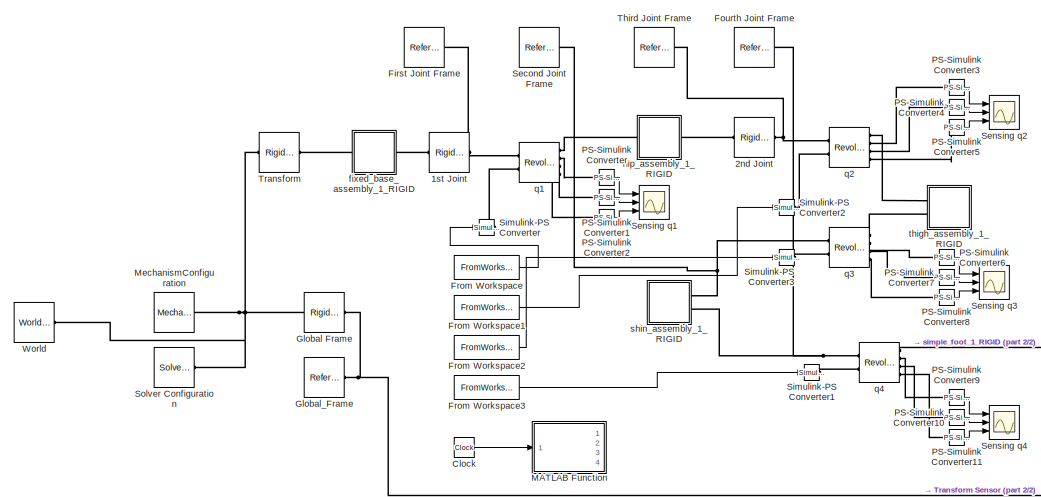
[diagram: root canvas - part 1/2, left side, full height]
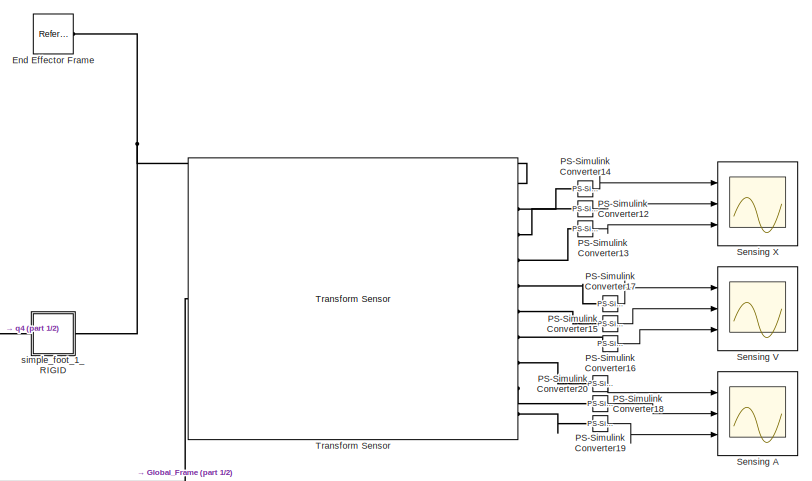
[diagram: root canvas - part 2/2, right side, full height]
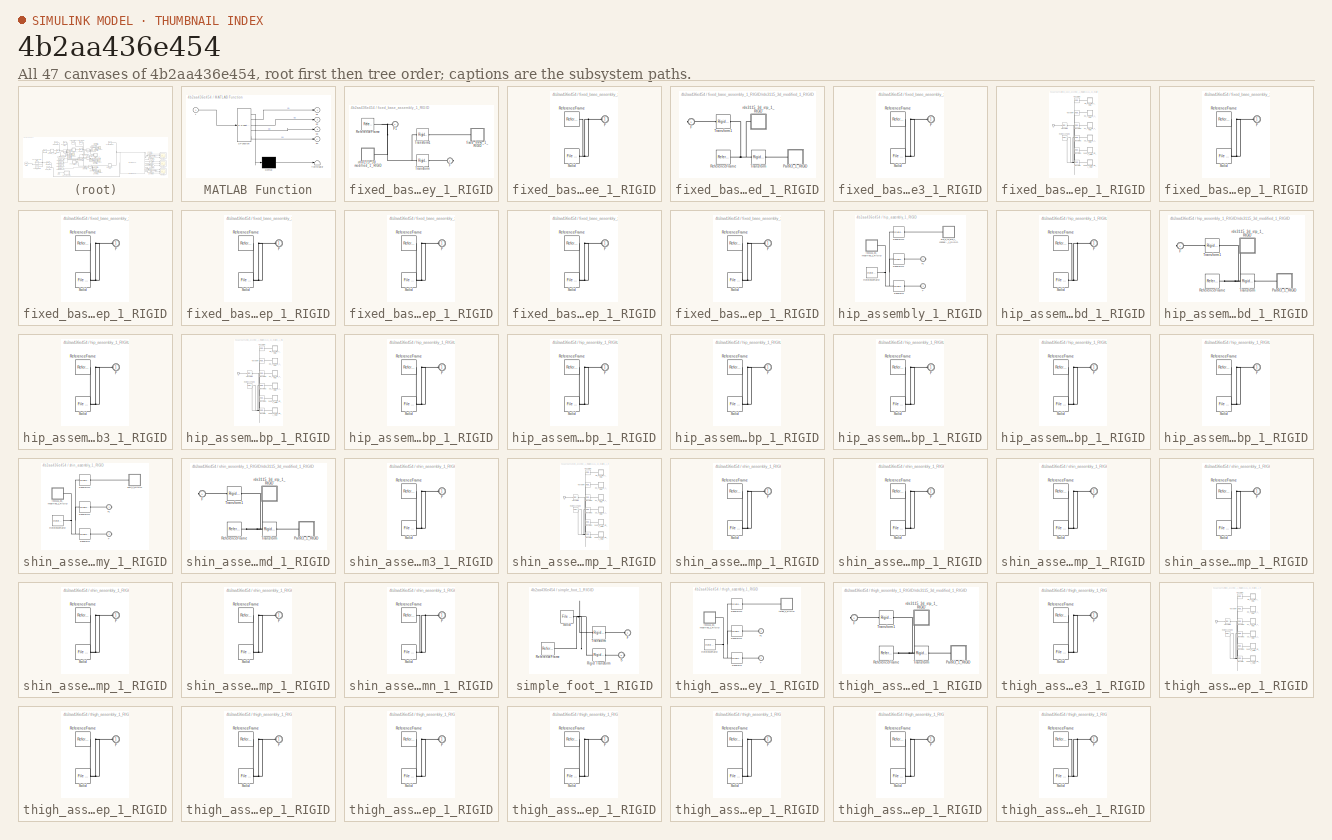
[diagram: thumbnail index - all 47 canvases of the model, root first then tree order]
MODEL slx_4b2aa436e454
KIND model
CONFIG AbsTol = auto
CONFIG EnableMultiTasking = off
CONFIG FixedStep = 0.01
CONFIG MaxStep = auto
CONFIG MinStep = auto
CONFIG RelTol = 1e-3
CONFIG SampleTimeConstraint = Specified
CONFIG SolverName = VariableStepAuto
CONFIG StartTime = 0.0
CONFIG StopTime = 10.0
WORKSPACE source: external: MATLAB File  (data not in archive)
BLOCK [Reference] 1st Joint  REF=sm_lib/Frames and
Transforms/Rigid
Transform
  Ports = [0, 0, 0, 0, 0, 1, 1]
  SourceBlock = sm_lib/Frames and\nTransforms/Rigid\nTransform
  SourceProductBaseCode = MS
  SourceType = Rigid\nTransform
BLOCK [Reference] 2nd Joint  REF=sm_lib/Frames and
Transforms/Rigid
Transform
  Ports = [0, 0, 0, 0, 0, 1, 1]
  SourceBlock = sm_lib/Frames and\nTransforms/Rigid\nTransform
  SourceProductBaseCode = MS
  SourceType = Rigid\nTransform
BLOCK [Clock] Clock
  Commented = on
BLOCK [Reference] End Effector Frame  REF=sm_lib/Frames and
Transforms/Reference
Frame
  Ports = [0, 0, 0, 0, 0, 0, 1]
  SourceBlock = sm_lib/Frames and\nTransforms/Reference\nFrame
  SourceProductBaseCode = MS
  SourceType = Reference\nFrame
BLOCK [Reference] First Joint Frame  REF=sm_lib/Frames and
Transforms/Reference
Frame
  Ports = [0, 0, 0, 0, 0, 0, 1]
  SourceBlock = sm_lib/Frames and\nTransforms/Reference\nFrame
  SourceProductBaseCode = MS
  SourceType = Reference\nFrame
BLOCK [Reference] Fourth Joint Frame  REF=sm_lib/Frames and
Transforms/Reference
Frame
  Ports = [0, 0, 0, 0, 0, 0, 1]
  SourceBlock = sm_lib/Frames and\nTransforms/Reference\nFrame
  SourceProductBaseCode = MS
  SourceType = Reference\nFrame
BLOCK [FromWorkspace] From Workspace
  VariableName = q1
BLOCK [FromWorkspace] From Workspace1
  VariableName = q2
BLOCK [FromWorkspace] From Workspace2
  VariableName = q3
BLOCK [FromWorkspace] From Workspace3
  VariableName = q4
BLOCK [Reference] Global Frame  REF=sm_lib/Frames and
Transforms/Rigid
Transform
  Ports = [0, 0, 0, 0, 0, 1, 1]
  SourceBlock = sm_lib/Frames and\nTransforms/Rigid\nTransform
  SourceProductBaseCode = MS
  SourceType = Rigid\nTransform
BLOCK [Reference] Global_Frame  REF=sm_lib/Frames and
Transforms/Reference
Frame
  Ports = [0, 0, 0, 0, 0, 0, 1]
  SourceBlock = sm_lib/Frames and\nTransforms/Reference\nFrame
  SourceProductBaseCode = MS
  SourceType = Reference\nFrame
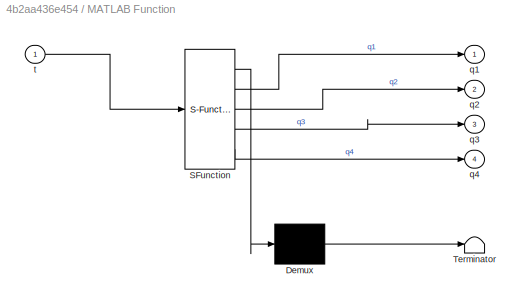
BLOCK [SubSystem] MATLAB Function
  Commented = on
  ErrorFcn = Stateflow.Translate.translate
  PermitHierarchicalResolution = ExplicitOnly
  Ports = [1, 4]
  RequestExecContextInheritance = off
  SFBlockType = MATLAB Function
  TreatAsAtomicUnit = on
BLOCK [Demux] MATLAB Function/ Demux 
  Outputs = 1
  Ports = [1, 1]
BLOCK [S-Function] MATLAB Function/ SFunction 
  EnableBusSupport = on
  FunctionName = sf_sfun
  PortCounts = [1 5]
  Ports = [1, 5]
  SFcnIsStateOwnerBlock = off
  SFunctionDeploymentMode = off
  Tag = Stateflow S-Function 2
BLOCK [Terminator] MATLAB Function/ Terminator 
BLOCK [Outport] MATLAB Function/q1
BLOCK [Outport] MATLAB Function/q2
  Port = 2
BLOCK [Outport] MATLAB Function/q3
  Port = 3
BLOCK [Outport] MATLAB Function/q4
  Port = 4
BLOCK [Inport] MATLAB Function/t
BLOCK [Reference] MechanismConfiguration  REF=sm_lib/Utilities/Mechanism
Configuration
  Ports = [0, 0, 0, 0, 0, 0, 1]
  SourceBlock = sm_lib/Utilities/Mechanism\nConfiguration
  SourceProductBaseCode = MS
  SourceType = Mechanism\nConfiguration
BLOCK [Reference] PS-Simulink Converter  REF=nesl_utility/PS-Simulink
Converter
  Ports = [0, 1, 0, 0, 0, 1]
  SourceBlock = nesl_utility/PS-Simulink\nConverter
  SourceProductBaseCode = PW,SS
  SourceType = PS-Simulink\nConverter
BLOCK [Reference] PS-Simulink Converter1  REF=nesl_utility/PS-Simulink
Converter
  Ports = [0, 1, 0, 0, 0, 1]
  SourceBlock = nesl_utility/PS-Simulink\nConverter
  SourceProductBaseCode = PW,SS
  SourceType = PS-Simulink\nConverter
BLOCK [Reference] PS-Simulink Converter10  REF=nesl_utility/PS-Simulink
Converter
  Ports = [0, 1, 0, 0, 0, 1]
  SourceBlock = nesl_utility/PS-Simulink\nConverter
  SourceProductBaseCode = PW,SS
  SourceType = PS-Simulink\nConverter
BLOCK [Reference] PS-Simulink Converter11  REF=nesl_utility/PS-Simulink
Converter
  Ports = [0, 1, 0, 0, 0, 1]
  SourceBlock = nesl_utility/PS-Simulink\nConverter
  SourceProductBaseCode = PW,SS
  SourceType = PS-Simulink\nConverter
BLOCK [Reference] PS-Simulink Converter12  REF=nesl_utility/PS-Simulink
Converter
  Ports = [0, 1, 0, 0, 0, 1]
  SourceBlock = nesl_utility/PS-Simulink\nConverter
  SourceProductBaseCode = PW,SS
  SourceType = PS-Simulink\nConverter
BLOCK [Reference] PS-Simulink Converter13  REF=nesl_utility/PS-Simulink
Converter
  Ports = [0, 1, 0, 0, 0, 1]
  SourceBlock = nesl_utility/PS-Simulink\nConverter
  SourceProductBaseCode = PW,SS
  SourceType = PS-Simulink\nConverter
BLOCK [Reference] PS-Simulink Converter14  REF=nesl_utility/PS-Simulink
Converter
  Ports = [0, 1, 0, 0, 0, 1]
  SourceBlock = nesl_utility/PS-Simulink\nConverter
  SourceProductBaseCode = PW,SS
  SourceType = PS-Simulink\nConverter
BLOCK [Reference] PS-Simulink Converter15  REF=nesl_utility/PS-Simulink
Converter
  Ports = [0, 1, 0, 0, 0, 1]
  SourceBlock = nesl_utility/PS-Simulink\nConverter
  SourceProductBaseCode = PW,SS
  SourceType = PS-Simulink\nConverter
BLOCK [Reference] PS-Simulink Converter16  REF=nesl_utility/PS-Simulink
Converter
  Ports = [0, 1, 0, 0, 0, 1]
  SourceBlock = nesl_utility/PS-Simulink\nConverter
  SourceProductBaseCode = PW,SS
  SourceType = PS-Simulink\nConverter
BLOCK [Reference] PS-Simulink Converter17  REF=nesl_utility/PS-Simulink
Converter
  Ports = [0, 1, 0, 0, 0, 1]
  SourceBlock = nesl_utility/PS-Simulink\nConverter
  SourceProductBaseCode = PW,SS
  SourceType = PS-Simulink\nConverter
BLOCK [Reference] PS-Simulink Converter18  REF=nesl_utility/PS-Simulink
Converter
  Ports = [0, 1, 0, 0, 0, 1]
  SourceBlock = nesl_utility/PS-Simulink\nConverter
  SourceProductBaseCode = PW,SS
  SourceType = PS-Simulink\nConverter
BLOCK [Reference] PS-Simulink Converter19  REF=nesl_utility/PS-Simulink
Converter
  Ports = [0, 1, 0, 0, 0, 1]
  SourceBlock = nesl_utility/PS-Simulink\nConverter
  SourceProductBaseCode = PW,SS
  SourceType = PS-Simulink\nConverter
BLOCK [Reference] PS-Simulink Converter2  REF=nesl_utility/PS-Simulink
Converter
  Ports = [0, 1, 0, 0, 0, 1]
  SourceBlock = nesl_utility/PS-Simulink\nConverter
  SourceProductBaseCode = PW,SS
  SourceType = PS-Simulink\nConverter
BLOCK [Reference] PS-Simulink Converter20  REF=nesl_utility/PS-Simulink
Converter
  Ports = [0, 1, 0, 0, 0, 1]
  SourceBlock = nesl_utility/PS-Simulink\nConverter
  SourceProductBaseCode = PW,SS
  SourceType = PS-Simulink\nConverter
BLOCK [Reference] PS-Simulink Converter3  REF=nesl_utility/PS-Simulink
Converter
  Ports = [0, 1, 0, 0, 0, 1]
  SourceBlock = nesl_utility/PS-Simulink\nConverter
  SourceProductBaseCode = PW,SS
  SourceType = PS-Simulink\nConverter
BLOCK [Reference] PS-Simulink Converter4  REF=nesl_utility/PS-Simulink
Converter
  Ports = [0, 1, 0, 0, 0, 1]
  SourceBlock = nesl_utility/PS-Simulink\nConverter
  SourceProductBaseCode = PW,SS
  SourceType = PS-Simulink\nConverter
BLOCK [Reference] PS-Simulink Converter5  REF=nesl_utility/PS-Simulink
Converter
  Ports = [0, 1, 0, 0, 0, 1]
  SourceBlock = nesl_utility/PS-Simulink\nConverter
  SourceProductBaseCode = PW,SS
  SourceType = PS-Simulink\nConverter
BLOCK [Reference] PS-Simulink Converter6  REF=nesl_utility/PS-Simulink
Converter
  Ports = [0, 1, 0, 0, 0, 1]
  SourceBlock = nesl_utility/PS-Simulink\nConverter
  SourceProductBaseCode = PW,SS
  SourceType = PS-Simulink\nConverter
BLOCK [Reference] PS-Simulink Converter7  REF=nesl_utility/PS-Simulink
Converter
  Ports = [0, 1, 0, 0, 0, 1]
  SourceBlock = nesl_utility/PS-Simulink\nConverter
  SourceProductBaseCode = PW,SS
  SourceType = PS-Simulink\nConverter
BLOCK [Reference] PS-Simulink Converter8  REF=nesl_utility/PS-Simulink
Converter
  Ports = [0, 1, 0, 0, 0, 1]
  SourceBlock = nesl_utility/PS-Simulink\nConverter
  SourceProductBaseCode = PW,SS
  SourceType = PS-Simulink\nConverter
BLOCK [Reference] PS-Simulink Converter9  REF=nesl_utility/PS-Simulink
Converter
  Ports = [0, 1, 0, 0, 0, 1]
  SourceBlock = nesl_utility/PS-Simulink\nConverter
  SourceProductBaseCode = PW,SS
  SourceType = PS-Simulink\nConverter
BLOCK [Reference] Second Joint Frame  REF=sm_lib/Frames and
Transforms/Reference
Frame
  Ports = [0, 0, 0, 0, 0, 0, 1]
  SourceBlock = sm_lib/Frames and\nTransforms/Reference\nFrame
  SourceProductBaseCode = MS
  SourceType = Reference\nFrame
BLOCK [Scope] Sensing A
  Floating = off
  NumInputPorts = 3
  Ports = [3]
  ScopeSpecificationString = Simulink.scopes.TimeScopeBlockCfg('CurrentConfiguration', extmgr.ConfigurationSet(extmgr.Configuration('Core','General UI',true),extmgr.Configuration('Core','Source UI',true),extmgr.Configuration('Sources','WiredSimulink',true,'DataLoggingVariableName','ScopeData3'),extmgr.Configuration('Visuals','Time Domain',true),extmgr.Configuration('Tools','Plot Navigation',true),extmgr.Configuration('Tools',...<+40ch>
BLOCK [Scope] Sensing V
  Floating = off
  NumInputPorts = 3
  Ports = [3]
  ScopeSpecificationString = Simulink.scopes.TimeScopeBlockCfg('CurrentConfiguration', extmgr.ConfigurationSet(extmgr.Configuration('Core','General UI',true),extmgr.Configuration('Core','Source UI',true),extmgr.Configuration('Sources','WiredSimulink',true,'DataLoggingVariableName','ScopeData2'),extmgr.Configuration('Visuals','Time Domain',true,'SerializedDisplays',{struct('MinYLimReal','-0.01624','MaxYLimReal','0.0018','YLabe...<+1750ch>
BLOCK [Scope] Sensing X
  Floating = off
  NumInputPorts = 3
  Ports = [3]
  ScopeSpecificationString = Simulink.scopes.TimeScopeBlockCfg('CurrentConfiguration', extmgr.ConfigurationSet(extmgr.Configuration('Core','General UI',true),extmgr.Configuration('Core','Source UI',true),extmgr.Configuration('Sources','WiredSimulink',true,'DataLoggingVariableName','ScopeData1'),extmgr.Configuration('Visuals','Time Domain',true,'SerializedDisplays',{struct('MinYLimReal','-0.46735','MaxYLimReal','0.32551','YLab...<+1838ch>
BLOCK [Scope] Sensing q1
  Floating = off
  NumInputPorts = 3
  Ports = [3]
  ScopeSpecificationString = Simulink.scopes.TimeScopeBlockCfg('CurrentConfiguration', extmgr.ConfigurationSet(extmgr.Configuration('Core','General UI',true),extmgr.Configuration('Core','Source UI',true),extmgr.Configuration('Sources','WiredSimulink',true),extmgr.Configuration('Visuals','Time Domain',true),extmgr.Configuration('Tools','Plot Navigation',true),extmgr.Configuration('Tools','Measurements',true)),'Version','2021b'...<+1ch>
BLOCK [Scope] Sensing q2
  Floating = off
  NumInputPorts = 3
  Ports = [3]
  ScopeSpecificationString = Simulink.scopes.TimeScopeBlockCfg('CurrentConfiguration', extmgr.ConfigurationSet(extmgr.Configuration('Core','General UI',true),extmgr.Configuration('Core','Source UI',true),extmgr.Configuration('Sources','WiredSimulink',true,'DataLoggingVariableName','ScopeData1'),extmgr.Configuration('Visuals','Time Domain',true),extmgr.Configuration('Tools','Plot Navigation',true),extmgr.Configuration('Tools',...<+40ch>
BLOCK [Scope] Sensing q3
  Floating = off
  NumInputPorts = 3
  Ports = [3]
  ScopeSpecificationString = Simulink.scopes.TimeScopeBlockCfg('CurrentConfiguration', extmgr.ConfigurationSet(extmgr.Configuration('Core','General UI',true),extmgr.Configuration('Core','Source UI',true),extmgr.Configuration('Sources','WiredSimulink',true,'DataLoggingVariableName','ScopeData2'),extmgr.Configuration('Visuals','Time Domain',true),extmgr.Configuration('Tools','Plot Navigation',true),extmgr.Configuration('Tools',...<+40ch>
BLOCK [Scope] Sensing q4
  Floating = off
  NumInputPorts = 3
  Ports = [3]
  ScopeSpecificationString = Simulink.scopes.TimeScopeBlockCfg('CurrentConfiguration', extmgr.ConfigurationSet(extmgr.Configuration('Core','General UI',true),extmgr.Configuration('Core','Source UI',true),extmgr.Configuration('Sources','WiredSimulink',true,'DataLoggingVariableName','ScopeData3'),extmgr.Configuration('Visuals','Time Domain',true),extmgr.Configuration('Tools','Plot Navigation',true),extmgr.Configuration('Tools',...<+40ch>
BLOCK [Reference] Simulink-PS Converter  REF=nesl_utility/Simulink-PS
Converter
  Ports = [1, 0, 0, 0, 0, 0, 1]
  SourceBlock = nesl_utility/Simulink-PS\nConverter
  SourceProductBaseCode = PW,SS
  SourceType = Simulink-PS\nConverter
BLOCK [Reference] Simulink-PS Converter1  REF=nesl_utility/Simulink-PS
Converter
  Ports = [1, 0, 0, 0, 0, 0, 1]
  SourceBlock = nesl_utility/Simulink-PS\nConverter
  SourceProductBaseCode = PW,SS
  SourceType = Simulink-PS\nConverter
BLOCK [Reference] Simulink-PS Converter2  REF=nesl_utility/Simulink-PS
Converter
  Ports = [1, 0, 0, 0, 0, 0, 1]
  SourceBlock = nesl_utility/Simulink-PS\nConverter
  SourceProductBaseCode = PW,SS
  SourceType = Simulink-PS\nConverter
BLOCK [Reference] Simulink-PS Converter3  REF=nesl_utility/Simulink-PS
Converter
  Ports = [1, 0, 0, 0, 0, 0, 1]
  SourceBlock = nesl_utility/Simulink-PS\nConverter
  SourceProductBaseCode = PW,SS
  SourceType = Simulink-PS\nConverter
BLOCK [Reference] Solver Configuration  REF=nesl_utility/Solver
Configuration
  Ports = [0, 0, 0, 0, 0, 0, 1]
  SourceBlock = nesl_utility/Solver\nConfiguration
  SourceProductBaseCode = PW,SS
  SourceType = Solver\nConfiguration
BLOCK [Reference] Third Joint Frame  REF=sm_lib/Frames and
Transforms/Reference
Frame
  Ports = [0, 0, 0, 0, 0, 0, 1]
  SourceBlock = sm_lib/Frames and\nTransforms/Reference\nFrame
  SourceProductBaseCode = MS
  SourceType = Reference\nFrame
BLOCK [Reference] Transform  REF=sm_lib/Frames and
Transforms/Rigid
Transform
  Ports = [0, 0, 0, 0, 0, 1, 1]
  SourceBlock = sm_lib/Frames and\nTransforms/Rigid\nTransform
  SourceProductBaseCode = MS
  SourceType = Rigid\nTransform
BLOCK [Reference] Transform Sensor  REF=sm_lib/Frames and
Transforms/Transform
Sensor
  Ports = [0, 0, 0, 0, 0, 1, 10]
  SourceBlock = sm_lib/Frames and\nTransforms/Transform\nSensor
  SourceProductBaseCode = MS
  SourceType = Transform\nSensor
BLOCK [Reference] World  REF=sm_lib/Frames and
Transforms/World Frame
  Ports = [0, 0, 0, 0, 0, 0, 1]
  SourceBlock = sm_lib/Frames and\nTransforms/World Frame
  SourceProductBaseCode = MS
  SourceType = World Frame
BLOCK [SubSystem] fixed_base_assembly_1_RIGID
  Ports = [0, 0, 0, 0, 0, 1, 1]
  RequestExecContextInheritance = off
BLOCK [PMIOPort] fixed_base_assembly_1_RIGID/F
  Port = 2
  Side = Right
BLOCK [PMIOPort] fixed_base_assembly_1_RIGID/F1
  Side = Left
BLOCK [Reference] fixed_base_assembly_1_RIGID/ReferenceFrame  REF=sm_lib/Frames and
Transforms/Reference
Frame
  Ports = [0, 0, 0, 0, 0, 0, 1]
  SourceBlock = sm_lib/Frames and\nTransforms/Reference\nFrame
  SourceProductBaseCode = MS
  SourceType = Reference\nFrame
BLOCK [Reference] fixed_base_assembly_1_RIGID/Transform  REF=sm_lib/Frames and
Transforms/Rigid
Transform
  Ports = [0, 0, 0, 0, 0, 1, 1]
  SourceBlock = sm_lib/Frames and\nTransforms/Rigid\nTransform
  SourceProductBaseCode = MS
  SourceType = Rigid\nTransform
BLOCK [Reference] fixed_base_assembly_1_RIGID/Transform1  REF=sm_lib/Frames and
Transforms/Rigid
Transform
  Ports = [0, 0, 0, 0, 0, 1, 1]
  SourceBlock = sm_lib/Frames and\nTransforms/Rigid\nTransform
  SourceProductBaseCode = MS
  SourceType = Rigid\nTransform
BLOCK [SubSystem] fixed_base_assembly_1_RIGID/fixed_base_1_RIGID
  Ports = [0, 0, 0, 0, 0, 1]
  RequestExecContextInheritance = off
BLOCK [PMIOPort] fixed_base_assembly_1_RIGID/fixed_base_1_RIGID/F
  Side = Left
BLOCK [Reference] fixed_base_assembly_1_RIGID/fixed_base_1_RIGID/ReferenceFrame  REF=sm_lib/Frames and
Transforms/Reference
Frame
  Ports = [0, 0, 0, 0, 0, 0, 1]
  SourceBlock = sm_lib/Frames and\nTransforms/Reference\nFrame
  SourceProductBaseCode = MS
  SourceType = Reference\nFrame
BLOCK [Reference] fixed_base_assembly_1_RIGID/fixed_base_1_RIGID/Solid  REF=sm_lib/Body Elements/File Solid
  Ports = [0, 0, 0, 0, 0, 0, 1]
  SourceBlock = sm_lib/Body Elements/File Solid
  SourceProductBaseCode = MS
  SourceType = File Solid
BLOCK [SubSystem] fixed_base_assembly_1_RIGID/rds3115_3d_modified_1_RIGID
  Ports = [0, 0, 0, 0, 0, 0, 1]
  RequestExecContextInheritance = off
BLOCK [PMIOPort] fixed_base_assembly_1_RIGID/rds3115_3d_modified_1_RIGID/F
  Side = Right
BLOCK [SubSystem] fixed_base_assembly_1_RIGID/rds3115_3d_modified_1_RIGID/Part43_1_RIGID
  Ports = [0, 0, 0, 0, 0, 1]
  RequestExecContextInheritance = off
BLOCK [PMIOPort] fixed_base_assembly_1_RIGID/rds3115_3d_modified_1_RIGID/Part43_1_RIGID/F
  Side = Left
BLOCK [Reference] fixed_base_assembly_1_RIGID/rds3115_3d_modified_1_RIGID/Part43_1_RIGID/ReferenceFrame  REF=sm_lib/Frames and
Transforms/Reference
Frame
  Ports = [0, 0, 0, 0, 0, 0, 1]
  SourceBlock = sm_lib/Frames and\nTransforms/Reference\nFrame
  SourceProductBaseCode = MS
  SourceType = Reference\nFrame
BLOCK [Reference] fixed_base_assembly_1_RIGID/rds3115_3d_modified_1_RIGID/Part43_1_RIGID/Solid  REF=sm_lib/Body Elements/File Solid
  Ports = [0, 0, 0, 0, 0, 0, 1]
  SourceBlock = sm_lib/Body Elements/File Solid
  SourceProductBaseCode = MS
  SourceType = File Solid
BLOCK [Reference] fixed_base_assembly_1_RIGID/rds3115_3d_modified_1_RIGID/ReferenceFrame  REF=sm_lib/Frames and
Transforms/Reference
Frame
  Ports = [0, 0, 0, 0, 0, 0, 1]
  SourceBlock = sm_lib/Frames and\nTransforms/Reference\nFrame
  SourceProductBaseCode = MS
  SourceType = Reference\nFrame
BLOCK [Reference] fixed_base_assembly_1_RIGID/rds3115_3d_modified_1_RIGID/Transform  REF=sm_lib/Frames and
Transforms/Rigid
Transform
  Ports = [0, 0, 0, 0, 0, 1, 1]
  SourceBlock = sm_lib/Frames and\nTransforms/Rigid\nTransform
  SourceProductBaseCode = MS
  SourceType = Rigid\nTransform
BLOCK [Reference] fixed_base_assembly_1_RIGID/rds3115_3d_modified_1_RIGID/Transform1  REF=sm_lib/Frames and
Transforms/Rigid
Transform
  Ports = [0, 0, 0, 0, 0, 1, 1]
  SourceBlock = sm_lib/Frames and\nTransforms/Rigid\nTransform
  SourceProductBaseCode = MS
  SourceType = Rigid\nTransform
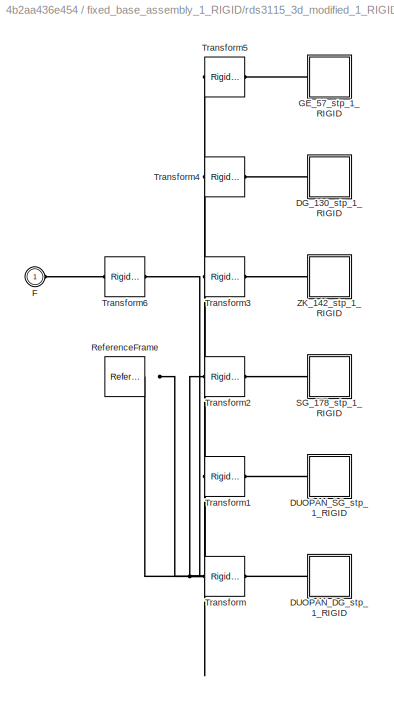
BLOCK [SubSystem] fixed_base_assembly_1_RIGID/rds3115_3d_modified_1_RIGID/rds3115_3d_stp_1_RIGID
  Ports = [0, 0, 0, 0, 0, 1]
  RequestExecContextInheritance = off
BLOCK [SubSystem] fixed_base_assembly_1_RIGID/rds3115_3d_modified_1_RIGID/rds3115_3d_stp_1_RIGID/DG_130_stp_1_RIGID
  Ports = [0, 0, 0, 0, 0, 1]
  RequestExecContextInheritance = off
BLOCK [PMIOPort] fixed_base_assembly_1_RIGID/rds3115_3d_modified_1_RIGID/rds3115_3d_stp_1_RIGID/DG_130_stp_1_RIGID/F
  Side = Left
BLOCK [Reference] fixed_base_assembly_1_RIGID/rds3115_3d_modified_1_RIGID/rds3115_3d_stp_1_RIGID/DG_130_stp_1_RIGID/ReferenceFrame  REF=sm_lib/Frames and
Transforms/Reference
Frame
  Ports = [0, 0, 0, 0, 0, 0, 1]
  SourceBlock = sm_lib/Frames and\nTransforms/Reference\nFrame
  SourceProductBaseCode = MS
  SourceType = Reference\nFrame
BLOCK [Reference] fixed_base_assembly_1_RIGID/rds3115_3d_modified_1_RIGID/rds3115_3d_stp_1_RIGID/DG_130_stp_1_RIGID/Solid  REF=sm_lib/Body Elements/File Solid
  Ports = [0, 0, 0, 0, 0, 0, 1]
  SourceBlock = sm_lib/Body Elements/File Solid
  SourceProductBaseCode = MS
  SourceType = File Solid
BLOCK [SubSystem] fixed_base_assembly_1_RIGID/rds3115_3d_modified_1_RIGID/rds3115_3d_stp_1_RIGID/DUOPAN_DG_stp_1_RIGID
  Ports = [0, 0, 0, 0, 0, 1]
  RequestExecContextInheritance = off
BLOCK [PMIOPort] fixed_base_assembly_1_RIGID/rds3115_3d_modified_1_RIGID/rds3115_3d_stp_1_RIGID/DUOPAN_DG_stp_1_RIGID/F
  Side = Left
BLOCK [Reference] fixed_base_assembly_1_RIGID/rds3115_3d_modified_1_RIGID/rds3115_3d_stp_1_RIGID/DUOPAN_DG_stp_1_RIGID/ReferenceFrame  REF=sm_lib/Frames and
Transforms/Reference
Frame
  Ports = [0, 0, 0, 0, 0, 0, 1]
  SourceBlock = sm_lib/Frames and\nTransforms/Reference\nFrame
  SourceProductBaseCode = MS
  SourceType = Reference\nFrame
BLOCK [Reference] fixed_base_assembly_1_RIGID/rds3115_3d_modified_1_RIGID/rds3115_3d_stp_1_RIGID/DUOPAN_DG_stp_1_RIGID/Solid  REF=sm_lib/Body Elements/File Solid
  Ports = [0, 0, 0, 0, 0, 0, 1]
  SourceBlock = sm_lib/Body Elements/File Solid
  SourceProductBaseCode = MS
  SourceType = File Solid
BLOCK [SubSystem] fixed_base_assembly_1_RIGID/rds3115_3d_modified_1_RIGID/rds3115_3d_stp_1_RIGID/DUOPAN_SG_stp_1_RIGID
  Ports = [0, 0, 0, 0, 0, 1]
  RequestExecContextInheritance = off
BLOCK [PMIOPort] fixed_base_assembly_1_RIGID/rds3115_3d_modified_1_RIGID/rds3115_3d_stp_1_RIGID/DUOPAN_SG_stp_1_RIGID/F
  Side = Left
BLOCK [Reference] fixed_base_assembly_1_RIGID/rds3115_3d_modified_1_RIGID/rds3115_3d_stp_1_RIGID/DUOPAN_SG_stp_1_RIGID/ReferenceFrame  REF=sm_lib/Frames and
Transforms/Reference
Frame
  Ports = [0, 0, 0, 0, 0, 0, 1]
  SourceBlock = sm_lib/Frames and\nTransforms/Reference\nFrame
  SourceProductBaseCode = MS
  SourceType = Reference\nFrame
BLOCK [Reference] fixed_base_assembly_1_RIGID/rds3115_3d_modified_1_RIGID/rds3115_3d_stp_1_RIGID/DUOPAN_SG_stp_1_RIGID/Solid  REF=sm_lib/Body Elements/File Solid
  Ports = [0, 0, 0, 0, 0, 0, 1]
  SourceBlock = sm_lib/Body Elements/File Solid
  SourceProductBaseCode = MS
  SourceType = File Solid
BLOCK [PMIOPort] fixed_base_assembly_1_RIGID/rds3115_3d_modified_1_RIGID/rds3115_3d_stp_1_RIGID/F
  Side = Left
BLOCK [SubSystem] fixed_base_assembly_1_RIGID/rds3115_3d_modified_1_RIGID/rds3115_3d_stp_1_RIGID/GE_57_stp_1_RIGID
  Ports = [0, 0, 0, 0, 0, 1]
  RequestExecContextInheritance = off
BLOCK [PMIOPort] fixed_base_assembly_1_RIGID/rds3115_3d_modified_1_RIGID/rds3115_3d_stp_1_RIGID/GE_57_stp_1_RIGID/F
  Side = Left
BLOCK [Reference] fixed_base_assembly_1_RIGID/rds3115_3d_modified_1_RIGID/rds3115_3d_stp_1_RIGID/GE_57_stp_1_RIGID/ReferenceFrame  REF=sm_lib/Frames and
Transforms/Reference
Frame
  Ports = [0, 0, 0, 0, 0, 0, 1]
  SourceBlock = sm_lib/Frames and\nTransforms/Reference\nFrame
  SourceProductBaseCode = MS
  SourceType = Reference\nFrame
BLOCK [Reference] fixed_base_assembly_1_RIGID/rds3115_3d_modified_1_RIGID/rds3115_3d_stp_1_RIGID/GE_57_stp_1_RIGID/Solid  REF=sm_lib/Body Elements/File Solid
  Ports = [0, 0, 0, 0, 0, 0, 1]
  SourceBlock = sm_lib/Body Elements/File Solid
  SourceProductBaseCode = MS
  SourceType = File Solid
BLOCK [Reference] fixed_base_assembly_1_RIGID/rds3115_3d_modified_1_RIGID/rds3115_3d_stp_1_RIGID/ReferenceFrame  REF=sm_lib/Frames and
Transforms/Reference
Frame
  Ports = [0, 0, 0, 0, 0, 0, 1]
  SourceBlock = sm_lib/Frames and\nTransforms/Reference\nFrame
  SourceProductBaseCode = MS
  SourceType = Reference\nFrame
BLOCK [SubSystem] fixed_base_assembly_1_RIGID/rds3115_3d_modified_1_RIGID/rds3115_3d_stp_1_RIGID/SG_178_stp_1_RIGID
  Ports = [0, 0, 0, 0, 0, 1]
  RequestExecContextInheritance = off
BLOCK [PMIOPort] fixed_base_assembly_1_RIGID/rds3115_3d_modified_1_RIGID/rds3115_3d_stp_1_RIGID/SG_178_stp_1_RIGID/F
  Side = Left
BLOCK [Reference] fixed_base_assembly_1_RIGID/rds3115_3d_modified_1_RIGID/rds3115_3d_stp_1_RIGID/SG_178_stp_1_RIGID/ReferenceFrame  REF=sm_lib/Frames and
Transforms/Reference
Frame
  Ports = [0, 0, 0, 0, 0, 0, 1]
  SourceBlock = sm_lib/Frames and\nTransforms/Reference\nFrame
  SourceProductBaseCode = MS
  SourceType = Reference\nFrame
BLOCK [Reference] fixed_base_assembly_1_RIGID/rds3115_3d_modified_1_RIGID/rds3115_3d_stp_1_RIGID/SG_178_stp_1_RIGID/Solid  REF=sm_lib/Body Elements/File Solid
  Ports = [0, 0, 0, 0, 0, 0, 1]
  SourceBlock = sm_lib/Body Elements/File Solid
  SourceProductBaseCode = MS
  SourceType = File Solid
BLOCK [Reference] fixed_base_assembly_1_RIGID/rds3115_3d_modified_1_RIGID/rds3115_3d_stp_1_RIGID/Transform  REF=sm_lib/Frames and
Transforms/Rigid
Transform
  Ports = [0, 0, 0, 0, 0, 1, 1]
  SourceBlock = sm_lib/Frames and\nTransforms/Rigid\nTransform
  SourceProductBaseCode = MS
  SourceType = Rigid\nTransform
BLOCK [Reference] fixed_base_assembly_1_RIGID/rds3115_3d_modified_1_RIGID/rds3115_3d_stp_1_RIGID/Transform1  REF=sm_lib/Frames and
Transforms/Rigid
Transform
  Ports = [0, 0, 0, 0, 0, 1, 1]
  SourceBlock = sm_lib/Frames and\nTransforms/Rigid\nTransform
  SourceProductBaseCode = MS
  SourceType = Rigid\nTransform
BLOCK [Reference] fixed_base_assembly_1_RIGID/rds3115_3d_modified_1_RIGID/rds3115_3d_stp_1_RIGID/Transform2  REF=sm_lib/Frames and
Transforms/Rigid
Transform
  Ports = [0, 0, 0, 0, 0, 1, 1]
  SourceBlock = sm_lib/Frames and\nTransforms/Rigid\nTransform
  SourceProductBaseCode = MS
  SourceType = Rigid\nTransform
BLOCK [Reference] fixed_base_assembly_1_RIGID/rds3115_3d_modified_1_RIGID/rds3115_3d_stp_1_RIGID/Transform3  REF=sm_lib/Frames and
Transforms/Rigid
Transform
  Ports = [0, 0, 0, 0, 0, 1, 1]
  SourceBlock = sm_lib/Frames and\nTransforms/Rigid\nTransform
  SourceProductBaseCode = MS
  SourceType = Rigid\nTransform
BLOCK [Reference] fixed_base_assembly_1_RIGID/rds3115_3d_modified_1_RIGID/rds3115_3d_stp_1_RIGID/Transform4  REF=sm_lib/Frames and
Transforms/Rigid
Transform
  Ports = [0, 0, 0, 0, 0, 1, 1]
  SourceBlock = sm_lib/Frames and\nTransforms/Rigid\nTransform
  SourceProductBaseCode = MS
  SourceType = Rigid\nTransform
BLOCK [Reference] fixed_base_assembly_1_RIGID/rds3115_3d_modified_1_RIGID/rds3115_3d_stp_1_RIGID/Transform5  REF=sm_lib/Frames and
Transforms/Rigid
Transform
  Ports = [0, 0, 0, 0, 0, 1, 1]
  SourceBlock = sm_lib/Frames and\nTransforms/Rigid\nTransform
  SourceProductBaseCode = MS
  SourceType = Rigid\nTransform
BLOCK [Reference] fixed_base_assembly_1_RIGID/rds3115_3d_modified_1_RIGID/rds3115_3d_stp_1_RIGID/Transform6  REF=sm_lib/Frames and
Transforms/Rigid
Transform
  Ports = [0, 0, 0, 0, 0, 1, 1]
  SourceBlock = sm_lib/Frames and\nTransforms/Rigid\nTransform
  SourceProductBaseCode = MS
  SourceType = Rigid\nTransform
BLOCK [SubSystem] fixed_base_assembly_1_RIGID/rds3115_3d_modified_1_RIGID/rds3115_3d_stp_1_RIGID/ZK_142_stp_1_RIGID
  Ports = [0, 0, 0, 0, 0, 1]
  RequestExecContextInheritance = off
BLOCK [PMIOPort] fixed_base_assembly_1_RIGID/rds3115_3d_modified_1_RIGID/rds3115_3d_stp_1_RIGID/ZK_142_stp_1_RIGID/F
  Side = Left
BLOCK [Reference] fixed_base_assembly_1_RIGID/rds3115_3d_modified_1_RIGID/rds3115_3d_stp_1_RIGID/ZK_142_stp_1_RIGID/ReferenceFrame  REF=sm_lib/Frames and
Transforms/Reference
Frame
  Ports = [0, 0, 0, 0, 0, 0, 1]
  SourceBlock = sm_lib/Frames and\nTransforms/Reference\nFrame
  SourceProductBaseCode = MS
  SourceType = Reference\nFrame
BLOCK [Reference] fixed_base_assembly_1_RIGID/rds3115_3d_modified_1_RIGID/rds3115_3d_stp_1_RIGID/ZK_142_stp_1_RIGID/Solid  REF=sm_lib/Body Elements/File Solid
  Ports = [0, 0, 0, 0, 0, 0, 1]
  SourceBlock = sm_lib/Body Elements/File Solid
  SourceProductBaseCode = MS
  SourceType = File Solid
BLOCK [SubSystem] hip_assembly_1_RIGID
  Ports = [0, 0, 0, 0, 0, 1, 1]
  RequestExecContextInheritance = off
BLOCK [PMIOPort] hip_assembly_1_RIGID/F
  Side = Left
BLOCK [PMIOPort] hip_assembly_1_RIGID/F1
  Port = 2
  Side = Right
BLOCK [Reference] hip_assembly_1_RIGID/ReferenceFrame  REF=sm_lib/Frames and
Transforms/Reference
Frame
  Ports = [0, 0, 0, 0, 0, 0, 1]
  SourceBlock = sm_lib/Frames and\nTransforms/Reference\nFrame
  SourceProductBaseCode = MS
  SourceType = Reference\nFrame
BLOCK [Reference] hip_assembly_1_RIGID/Transform  REF=sm_lib/Frames and
Transforms/Rigid
Transform
  Ports = [0, 0, 0, 0, 0, 1, 1]
  SourceBlock = sm_lib/Frames and\nTransforms/Rigid\nTransform
  SourceProductBaseCode = MS
  SourceType = Rigid\nTransform
BLOCK [Reference] hip_assembly_1_RIGID/Transform1  REF=sm_lib/Frames and
Transforms/Rigid
Transform
  Ports = [0, 0, 0, 0, 0, 1, 1]
  SourceBlock = sm_lib/Frames and\nTransforms/Rigid\nTransform
  SourceProductBaseCode = MS
  SourceType = Rigid\nTransform
BLOCK [Reference] hip_assembly_1_RIGID/Transform2  REF=sm_lib/Frames and
Transforms/Rigid
Transform
  Ports = [0, 0, 0, 0, 0, 1, 1]
  SourceBlock = sm_lib/Frames and\nTransforms/Rigid\nTransform
  SourceProductBaseCode = MS
  SourceType = Rigid\nTransform
BLOCK [SubSystem] hip_assembly_1_RIGID/hip_z_to_hip_y_connecto_modified_1_RIGID
  Ports = [0, 0, 0, 0, 0, 1]
  RequestExecContextInheritance = off
BLOCK [PMIOPort] hip_assembly_1_RIGID/hip_z_to_hip_y_connecto_modified_1_RIGID/F
  Side = Left
BLOCK [Reference] hip_assembly_1_RIGID/hip_z_to_hip_y_connecto_modified_1_RIGID/ReferenceFrame  REF=sm_lib/Frames and
Transforms/Reference
Frame
  Ports = [0, 0, 0, 0, 0, 0, 1]
  SourceBlock = sm_lib/Frames and\nTransforms/Reference\nFrame
  SourceProductBaseCode = MS
  SourceType = Reference\nFrame
BLOCK [Reference] hip_assembly_1_RIGID/hip_z_to_hip_y_connecto_modified_1_RIGID/Solid  REF=sm_lib/Body Elements/File Solid
  Ports = [0, 0, 0, 0, 0, 0, 1]
  SourceBlock = sm_lib/Body Elements/File Solid
  SourceProductBaseCode = MS
  SourceType = File Solid
BLOCK [SubSystem] hip_assembly_1_RIGID/rds3115_3d_modified_1_RIGID
  Ports = [0, 0, 0, 0, 0, 0, 1]
  RequestExecContextInheritance = off
BLOCK [PMIOPort] hip_assembly_1_RIGID/rds3115_3d_modified_1_RIGID/F
  Side = Right
BLOCK [SubSystem] hip_assembly_1_RIGID/rds3115_3d_modified_1_RIGID/Part43_1_RIGID
  Ports = [0, 0, 0, 0, 0, 1]
  RequestExecContextInheritance = off
BLOCK [PMIOPort] hip_assembly_1_RIGID/rds3115_3d_modified_1_RIGID/Part43_1_RIGID/F
  Side = Left
BLOCK [Reference] hip_assembly_1_RIGID/rds3115_3d_modified_1_RIGID/Part43_1_RIGID/ReferenceFrame  REF=sm_lib/Frames and
Transforms/Reference
Frame
  Ports = [0, 0, 0, 0, 0, 0, 1]
  SourceBlock = sm_lib/Frames and\nTransforms/Reference\nFrame
  SourceProductBaseCode = MS
  SourceType = Reference\nFrame
BLOCK [Reference] hip_assembly_1_RIGID/rds3115_3d_modified_1_RIGID/Part43_1_RIGID/Solid  REF=sm_lib/Body Elements/File Solid
  Ports = [0, 0, 0, 0, 0, 0, 1]
  SourceBlock = sm_lib/Body Elements/File Solid
  SourceProductBaseCode = MS
  SourceType = File Solid
BLOCK [Reference] hip_assembly_1_RIGID/rds3115_3d_modified_1_RIGID/ReferenceFrame  REF=sm_lib/Frames and
Transforms/Reference
Frame
  Ports = [0, 0, 0, 0, 0, 0, 1]
  SourceBlock = sm_lib/Frames and\nTransforms/Reference\nFrame
  SourceProductBaseCode = MS
  SourceType = Reference\nFrame
BLOCK [Reference] hip_assembly_1_RIGID/rds3115_3d_modified_1_RIGID/Transform  REF=sm_lib/Frames and
Transforms/Rigid
Transform
  Ports = [0, 0, 0, 0, 0, 1, 1]
  SourceBlock = sm_lib/Frames and\nTransforms/Rigid\nTransform
  SourceProductBaseCode = MS
  SourceType = Rigid\nTransform
BLOCK [Reference] hip_assembly_1_RIGID/rds3115_3d_modified_1_RIGID/Transform1  REF=sm_lib/Frames and
Transforms/Rigid
Transform
  Ports = [0, 0, 0, 0, 0, 1, 1]
  SourceBlock = sm_lib/Frames and\nTransforms/Rigid\nTransform
  SourceProductBaseCode = MS
  SourceType = Rigid\nTransform
BLOCK [SubSystem] hip_assembly_1_RIGID/rds3115_3d_modified_1_RIGID/rds3115_3d_stp_1_RIGID
  Ports = [0, 0, 0, 0, 0, 1]
  RequestExecContextInheritance = off
BLOCK [SubSystem] hip_assembly_1_RIGID/rds3115_3d_modified_1_RIGID/rds3115_3d_stp_1_RIGID/DG_130_stp_1_RIGID
  Ports = [0, 0, 0, 0, 0, 1]
  RequestExecContextInheritance = off
BLOCK [PMIOPort] hip_assembly_1_RIGID/rds3115_3d_modified_1_RIGID/rds3115_3d_stp_1_RIGID/DG_130_stp_1_RIGID/F
  Side = Left
BLOCK [Reference] hip_assembly_1_RIGID/rds3115_3d_modified_1_RIGID/rds3115_3d_stp_1_RIGID/DG_130_stp_1_RIGID/ReferenceFrame  REF=sm_lib/Frames and
Transforms/Reference
Frame
  Ports = [0, 0, 0, 0, 0, 0, 1]
  SourceBlock = sm_lib/Frames and\nTransforms/Reference\nFrame
  SourceProductBaseCode = MS
  SourceType = Reference\nFrame
BLOCK [Reference] hip_assembly_1_RIGID/rds3115_3d_modified_1_RIGID/rds3115_3d_stp_1_RIGID/DG_130_stp_1_RIGID/Solid  REF=sm_lib/Body Elements/File Solid
  Ports = [0, 0, 0, 0, 0, 0, 1]
  SourceBlock = sm_lib/Body Elements/File Solid
  SourceProductBaseCode = MS
  SourceType = File Solid
BLOCK [SubSystem] hip_assembly_1_RIGID/rds3115_3d_modified_1_RIGID/rds3115_3d_stp_1_RIGID/DUOPAN_DG_stp_1_RIGID
  Ports = [0, 0, 0, 0, 0, 1]
  RequestExecContextInheritance = off
BLOCK [PMIOPort] hip_assembly_1_RIGID/rds3115_3d_modified_1_RIGID/rds3115_3d_stp_1_RIGID/DUOPAN_DG_stp_1_RIGID/F
  Side = Left
BLOCK [Reference] hip_assembly_1_RIGID/rds3115_3d_modified_1_RIGID/rds3115_3d_stp_1_RIGID/DUOPAN_DG_stp_1_RIGID/ReferenceFrame  REF=sm_lib/Frames and
Transforms/Reference
Frame
  Ports = [0, 0, 0, 0, 0, 0, 1]
  SourceBlock = sm_lib/Frames and\nTransforms/Reference\nFrame
  SourceProductBaseCode = MS
  SourceType = Reference\nFrame
BLOCK [Reference] hip_assembly_1_RIGID/rds3115_3d_modified_1_RIGID/rds3115_3d_stp_1_RIGID/DUOPAN_DG_stp_1_RIGID/Solid  REF=sm_lib/Body Elements/File Solid
  Ports = [0, 0, 0, 0, 0, 0, 1]
  SourceBlock = sm_lib/Body Elements/File Solid
  SourceProductBaseCode = MS
  SourceType = File Solid
BLOCK [SubSystem] hip_assembly_1_RIGID/rds3115_3d_modified_1_RIGID/rds3115_3d_stp_1_RIGID/DUOPAN_SG_stp_1_RIGID
  Ports = [0, 0, 0, 0, 0, 1]
  RequestExecContextInheritance = off
BLOCK [PMIOPort] hip_assembly_1_RIGID/rds3115_3d_modified_1_RIGID/rds3115_3d_stp_1_RIGID/DUOPAN_SG_stp_1_RIGID/F
  Side = Left
BLOCK [Reference] hip_assembly_1_RIGID/rds3115_3d_modified_1_RIGID/rds3115_3d_stp_1_RIGID/DUOPAN_SG_stp_1_RIGID/ReferenceFrame  REF=sm_lib/Frames and
Transforms/Reference
Frame
  Ports = [0, 0, 0, 0, 0, 0, 1]
  SourceBlock = sm_lib/Frames and\nTransforms/Reference\nFrame
  SourceProductBaseCode = MS
  SourceType = Reference\nFrame
BLOCK [Reference] hip_assembly_1_RIGID/rds3115_3d_modified_1_RIGID/rds3115_3d_stp_1_RIGID/DUOPAN_SG_stp_1_RIGID/Solid  REF=sm_lib/Body Elements/File Solid
  Ports = [0, 0, 0, 0, 0, 0, 1]
  SourceBlock = sm_lib/Body Elements/File Solid
  SourceProductBaseCode = MS
  SourceType = File Solid
BLOCK [PMIOPort] hip_assembly_1_RIGID/rds3115_3d_modified_1_RIGID/rds3115_3d_stp_1_RIGID/F
  Side = Left
BLOCK [SubSystem] hip_assembly_1_RIGID/rds3115_3d_modified_1_RIGID/rds3115_3d_stp_1_RIGID/GE_57_stp_1_RIGID
  Ports = [0, 0, 0, 0, 0, 1]
  RequestExecContextInheritance = off
BLOCK [PMIOPort] hip_assembly_1_RIGID/rds3115_3d_modified_1_RIGID/rds3115_3d_stp_1_RIGID/GE_57_stp_1_RIGID/F
  Side = Left
BLOCK [Reference] hip_assembly_1_RIGID/rds3115_3d_modified_1_RIGID/rds3115_3d_stp_1_RIGID/GE_57_stp_1_RIGID/ReferenceFrame  REF=sm_lib/Frames and
Transforms/Reference
Frame
  Ports = [0, 0, 0, 0, 0, 0, 1]
  SourceBlock = sm_lib/Frames and\nTransforms/Reference\nFrame
  SourceProductBaseCode = MS
  SourceType = Reference\nFrame
BLOCK [Reference] hip_assembly_1_RIGID/rds3115_3d_modified_1_RIGID/rds3115_3d_stp_1_RIGID/GE_57_stp_1_RIGID/Solid  REF=sm_lib/Body Elements/File Solid
  Ports = [0, 0, 0, 0, 0, 0, 1]
  SourceBlock = sm_lib/Body Elements/File Solid
  SourceProductBaseCode = MS
  SourceType = File Solid
BLOCK [Reference] hip_assembly_1_RIGID/rds3115_3d_modified_1_RIGID/rds3115_3d_stp_1_RIGID/ReferenceFrame  REF=sm_lib/Frames and
Transforms/Reference
Frame
  Ports = [0, 0, 0, 0, 0, 0, 1]
  SourceBlock = sm_lib/Frames and\nTransforms/Reference\nFrame
  SourceProductBaseCode = MS
  SourceType = Reference\nFrame
BLOCK [SubSystem] hip_assembly_1_RIGID/rds3115_3d_modified_1_RIGID/rds3115_3d_stp_1_RIGID/SG_178_stp_1_RIGID
  Ports = [0, 0, 0, 0, 0, 1]
  RequestExecContextInheritance = off
BLOCK [PMIOPort] hip_assembly_1_RIGID/rds3115_3d_modified_1_RIGID/rds3115_3d_stp_1_RIGID/SG_178_stp_1_RIGID/F
  Side = Left
BLOCK [Reference] hip_assembly_1_RIGID/rds3115_3d_modified_1_RIGID/rds3115_3d_stp_1_RIGID/SG_178_stp_1_RIGID/ReferenceFrame  REF=sm_lib/Frames and
Transforms/Reference
Frame
  Ports = [0, 0, 0, 0, 0, 0, 1]
  SourceBlock = sm_lib/Frames and\nTransforms/Reference\nFrame
  SourceProductBaseCode = MS
  SourceType = Reference\nFrame
BLOCK [Reference] hip_assembly_1_RIGID/rds3115_3d_modified_1_RIGID/rds3115_3d_stp_1_RIGID/SG_178_stp_1_RIGID/Solid  REF=sm_lib/Body Elements/File Solid
  Ports = [0, 0, 0, 0, 0, 0, 1]
  SourceBlock = sm_lib/Body Elements/File Solid
  SourceProductBaseCode = MS
  SourceType = File Solid
BLOCK [Reference] hip_assembly_1_RIGID/rds3115_3d_modified_1_RIGID/rds3115_3d_stp_1_RIGID/Transform  REF=sm_lib/Frames and
Transforms/Rigid
Transform
  Ports = [0, 0, 0, 0, 0, 1, 1]
  SourceBlock = sm_lib/Frames and\nTransforms/Rigid\nTransform
  SourceProductBaseCode = MS
  SourceType = Rigid\nTransform
BLOCK [Reference] hip_assembly_1_RIGID/rds3115_3d_modified_1_RIGID/rds3115_3d_stp_1_RIGID/Transform1  REF=sm_lib/Frames and
Transforms/Rigid
Transform
  Ports = [0, 0, 0, 0, 0, 1, 1]
  SourceBlock = sm_lib/Frames and\nTransforms/Rigid\nTransform
  SourceProductBaseCode = MS
  SourceType = Rigid\nTransform
BLOCK [Reference] hip_assembly_1_RIGID/rds3115_3d_modified_1_RIGID/rds3115_3d_stp_1_RIGID/Transform2  REF=sm_lib/Frames and
Transforms/Rigid
Transform
  Ports = [0, 0, 0, 0, 0, 1, 1]
  SourceBlock = sm_lib/Frames and\nTransforms/Rigid\nTransform
  SourceProductBaseCode = MS
  SourceType = Rigid\nTransform
BLOCK [Reference] hip_assembly_1_RIGID/rds3115_3d_modified_1_RIGID/rds3115_3d_stp_1_RIGID/Transform3  REF=sm_lib/Frames and
Transforms/Rigid
Transform
  Ports = [0, 0, 0, 0, 0, 1, 1]
  SourceBlock = sm_lib/Frames and\nTransforms/Rigid\nTransform
  SourceProductBaseCode = MS
  SourceType = Rigid\nTransform
BLOCK [Reference] hip_assembly_1_RIGID/rds3115_3d_modified_1_RIGID/rds3115_3d_stp_1_RIGID/Transform4  REF=sm_lib/Frames and
Transforms/Rigid
Transform
  Ports = [0, 0, 0, 0, 0, 1, 1]
  SourceBlock = sm_lib/Frames and\nTransforms/Rigid\nTransform
  SourceProductBaseCode = MS
  SourceType = Rigid\nTransform
BLOCK [Reference] hip_assembly_1_RIGID/rds3115_3d_modified_1_RIGID/rds3115_3d_stp_1_RIGID/Transform5  REF=sm_lib/Frames and
Transforms/Rigid
Transform
  Ports = [0, 0, 0, 0, 0, 1, 1]
  SourceBlock = sm_lib/Frames and\nTransforms/Rigid\nTransform
  SourceProductBaseCode = MS
  SourceType = Rigid\nTransform
BLOCK [Reference] hip_assembly_1_RIGID/rds3115_3d_modified_1_RIGID/rds3115_3d_stp_1_RIGID/Transform6  REF=sm_lib/Frames and
Transforms/Rigid
Transform
  Ports = [0, 0, 0, 0, 0, 1, 1]
  SourceBlock = sm_lib/Frames and\nTransforms/Rigid\nTransform
  SourceProductBaseCode = MS
  SourceType = Rigid\nTransform
BLOCK [SubSystem] hip_assembly_1_RIGID/rds3115_3d_modified_1_RIGID/rds3115_3d_stp_1_RIGID/ZK_142_stp_1_RIGID
  Ports = [0, 0, 0, 0, 0, 1]
  RequestExecContextInheritance = off
BLOCK [PMIOPort] hip_assembly_1_RIGID/rds3115_3d_modified_1_RIGID/rds3115_3d_stp_1_RIGID/ZK_142_stp_1_RIGID/F
  Side = Left
BLOCK [Reference] hip_assembly_1_RIGID/rds3115_3d_modified_1_RIGID/rds3115_3d_stp_1_RIGID/ZK_142_stp_1_RIGID/ReferenceFrame  REF=sm_lib/Frames and
Transforms/Reference
Frame
  Ports = [0, 0, 0, 0, 0, 0, 1]
  SourceBlock = sm_lib/Frames and\nTransforms/Reference\nFrame
  SourceProductBaseCode = MS
  SourceType = Reference\nFrame
BLOCK [Reference] hip_assembly_1_RIGID/rds3115_3d_modified_1_RIGID/rds3115_3d_stp_1_RIGID/ZK_142_stp_1_RIGID/Solid  REF=sm_lib/Body Elements/File Solid
  Ports = [0, 0, 0, 0, 0, 0, 1]
  SourceBlock = sm_lib/Body Elements/File Solid
  SourceProductBaseCode = MS
  SourceType = File Solid
BLOCK [Reference] q1  REF=sm_lib/Joints/Revolute Joint
  Ports = [0, 0, 0, 0, 0, 2, 4]
  SourceBlock = sm_lib/Joints/Revolute Joint
  SourceProductBaseCode = MS
  SourceType = Revolute Joint
BLOCK [Reference] q2  REF=sm_lib/Joints/Revolute Joint
  Ports = [0, 0, 0, 0, 0, 2, 4]
  SourceBlock = sm_lib/Joints/Revolute Joint
  SourceProductBaseCode = MS
  SourceType = Revolute Joint
BLOCK [Reference] q3  REF=sm_lib/Joints/Revolute Joint
  Ports = [0, 0, 0, 0, 0, 2, 4]
  SourceBlock = sm_lib/Joints/Revolute Joint
  SourceProductBaseCode = MS
  SourceType = Revolute Joint
BLOCK [Reference] q4  REF=sm_lib/Joints/Revolute Joint
  Ports = [0, 0, 0, 0, 0, 2, 4]
  SourceBlock = sm_lib/Joints/Revolute Joint
  SourceProductBaseCode = MS
  SourceType = Revolute Joint
BLOCK [SubSystem] shin_assembly_1_RIGID
  Ports = [0, 0, 0, 0, 0, 0, 2]
  RequestExecContextInheritance = off
BLOCK [PMIOPort] shin_assembly_1_RIGID/F
  Port = 2
  Side = Right
BLOCK [PMIOPort] shin_assembly_1_RIGID/F1
  Side = Right
BLOCK [Reference] shin_assembly_1_RIGID/ReferenceFrame  REF=sm_lib/Frames and
Transforms/Reference
Frame
  Ports = [0, 0, 0, 0, 0, 0, 1]
  SourceBlock = sm_lib/Frames and\nTransforms/Reference\nFrame
  SourceProductBaseCode = MS
  SourceType = Reference\nFrame
BLOCK [Reference] shin_assembly_1_RIGID/Transform  REF=sm_lib/Frames and
Transforms/Rigid
Transform
  Ports = [0, 0, 0, 0, 0, 1, 1]
  SourceBlock = sm_lib/Frames and\nTransforms/Rigid\nTransform
  SourceProductBaseCode = MS
  SourceType = Rigid\nTransform
BLOCK [Reference] shin_assembly_1_RIGID/Transform1  REF=sm_lib/Frames and
Transforms/Rigid
Transform
  Ports = [0, 0, 0, 0, 0, 1, 1]
  SourceBlock = sm_lib/Frames and\nTransforms/Rigid\nTransform
  SourceProductBaseCode = MS
  SourceType = Rigid\nTransform
BLOCK [Reference] shin_assembly_1_RIGID/Transform2  REF=sm_lib/Frames and
Transforms/Rigid
Transform
  Ports = [0, 0, 0, 0, 0, 1, 1]
  SourceBlock = sm_lib/Frames and\nTransforms/Rigid\nTransform
  SourceProductBaseCode = MS
  SourceType = Rigid\nTransform
BLOCK [SubSystem] shin_assembly_1_RIGID/rds3115_3d_modified_1_RIGID
  Ports = [0, 0, 0, 0, 0, 0, 1]
  RequestExecContextInheritance = off
BLOCK [PMIOPort] shin_assembly_1_RIGID/rds3115_3d_modified_1_RIGID/F
  Side = Right
BLOCK [SubSystem] shin_assembly_1_RIGID/rds3115_3d_modified_1_RIGID/Part43_1_RIGID
  Ports = [0, 0, 0, 0, 0, 1]
  RequestExecContextInheritance = off
BLOCK [PMIOPort] shin_assembly_1_RIGID/rds3115_3d_modified_1_RIGID/Part43_1_RIGID/F
  Side = Left
BLOCK [Reference] shin_assembly_1_RIGID/rds3115_3d_modified_1_RIGID/Part43_1_RIGID/ReferenceFrame  REF=sm_lib/Frames and
Transforms/Reference
Frame
  Ports = [0, 0, 0, 0, 0, 0, 1]
  SourceBlock = sm_lib/Frames and\nTransforms/Reference\nFrame
  SourceProductBaseCode = MS
  SourceType = Reference\nFrame
BLOCK [Reference] shin_assembly_1_RIGID/rds3115_3d_modified_1_RIGID/Part43_1_RIGID/Solid  REF=sm_lib/Body Elements/File Solid
  Ports = [0, 0, 0, 0, 0, 0, 1]
  SourceBlock = sm_lib/Body Elements/File Solid
  SourceProductBaseCode = MS
  SourceType = File Solid
BLOCK [Reference] shin_assembly_1_RIGID/rds3115_3d_modified_1_RIGID/ReferenceFrame  REF=sm_lib/Frames and
Transforms/Reference
Frame
  Ports = [0, 0, 0, 0, 0, 0, 1]
  SourceBlock = sm_lib/Frames and\nTransforms/Reference\nFrame
  SourceProductBaseCode = MS
  SourceType = Reference\nFrame
BLOCK [Reference] shin_assembly_1_RIGID/rds3115_3d_modified_1_RIGID/Transform  REF=sm_lib/Frames and
Transforms/Rigid
Transform
  Ports = [0, 0, 0, 0, 0, 1, 1]
  SourceBlock = sm_lib/Frames and\nTransforms/Rigid\nTransform
  SourceProductBaseCode = MS
  SourceType = Rigid\nTransform
BLOCK [Reference] shin_assembly_1_RIGID/rds3115_3d_modified_1_RIGID/Transform1  REF=sm_lib/Frames and
Transforms/Rigid
Transform
  Ports = [0, 0, 0, 0, 0, 1, 1]
  SourceBlock = sm_lib/Frames and\nTransforms/Rigid\nTransform
  SourceProductBaseCode = MS
  SourceType = Rigid\nTransform
BLOCK [SubSystem] shin_assembly_1_RIGID/rds3115_3d_modified_1_RIGID/rds3115_3d_stp_1_RIGID
  Ports = [0, 0, 0, 0, 0, 1]
  RequestExecContextInheritance = off
BLOCK [SubSystem] shin_assembly_1_RIGID/rds3115_3d_modified_1_RIGID/rds3115_3d_stp_1_RIGID/DG_130_stp_1_RIGID
  Ports = [0, 0, 0, 0, 0, 1]
  RequestExecContextInheritance = off
BLOCK [PMIOPort] shin_assembly_1_RIGID/rds3115_3d_modified_1_RIGID/rds3115_3d_stp_1_RIGID/DG_130_stp_1_RIGID/F
  Side = Left
BLOCK [Reference] shin_assembly_1_RIGID/rds3115_3d_modified_1_RIGID/rds3115_3d_stp_1_RIGID/DG_130_stp_1_RIGID/ReferenceFrame  REF=sm_lib/Frames and
Transforms/Reference
Frame
  Ports = [0, 0, 0, 0, 0, 0, 1]
  SourceBlock = sm_lib/Frames and\nTransforms/Reference\nFrame
  SourceProductBaseCode = MS
  SourceType = Reference\nFrame
BLOCK [Reference] shin_assembly_1_RIGID/rds3115_3d_modified_1_RIGID/rds3115_3d_stp_1_RIGID/DG_130_stp_1_RIGID/Solid  REF=sm_lib/Body Elements/File Solid
  Ports = [0, 0, 0, 0, 0, 0, 1]
  SourceBlock = sm_lib/Body Elements/File Solid
  SourceProductBaseCode = MS
  SourceType = File Solid
BLOCK [SubSystem] shin_assembly_1_RIGID/rds3115_3d_modified_1_RIGID/rds3115_3d_stp_1_RIGID/DUOPAN_DG_stp_1_RIGID
  Ports = [0, 0, 0, 0, 0, 1]
  RequestExecContextInheritance = off
BLOCK [PMIOPort] shin_assembly_1_RIGID/rds3115_3d_modified_1_RIGID/rds3115_3d_stp_1_RIGID/DUOPAN_DG_stp_1_RIGID/F
  Side = Left
BLOCK [Reference] shin_assembly_1_RIGID/rds3115_3d_modified_1_RIGID/rds3115_3d_stp_1_RIGID/DUOPAN_DG_stp_1_RIGID/ReferenceFrame  REF=sm_lib/Frames and
Transforms/Reference
Frame
  Ports = [0, 0, 0, 0, 0, 0, 1]
  SourceBlock = sm_lib/Frames and\nTransforms/Reference\nFrame
  SourceProductBaseCode = MS
  SourceType = Reference\nFrame
BLOCK [Reference] shin_assembly_1_RIGID/rds3115_3d_modified_1_RIGID/rds3115_3d_stp_1_RIGID/DUOPAN_DG_stp_1_RIGID/Solid  REF=sm_lib/Body Elements/File Solid
  Ports = [0, 0, 0, 0, 0, 0, 1]
  SourceBlock = sm_lib/Body Elements/File Solid
  SourceProductBaseCode = MS
  SourceType = File Solid
BLOCK [SubSystem] shin_assembly_1_RIGID/rds3115_3d_modified_1_RIGID/rds3115_3d_stp_1_RIGID/DUOPAN_SG_stp_1_RIGID
  Ports = [0, 0, 0, 0, 0, 1]
  RequestExecContextInheritance = off
BLOCK [PMIOPort] shin_assembly_1_RIGID/rds3115_3d_modified_1_RIGID/rds3115_3d_stp_1_RIGID/DUOPAN_SG_stp_1_RIGID/F
  Side = Left
BLOCK [Reference] shin_assembly_1_RIGID/rds3115_3d_modified_1_RIGID/rds3115_3d_stp_1_RIGID/DUOPAN_SG_stp_1_RIGID/ReferenceFrame  REF=sm_lib/Frames and
Transforms/Reference
Frame
  Ports = [0, 0, 0, 0, 0, 0, 1]
  SourceBlock = sm_lib/Frames and\nTransforms/Reference\nFrame
  SourceProductBaseCode = MS
  SourceType = Reference\nFrame
BLOCK [Reference] shin_assembly_1_RIGID/rds3115_3d_modified_1_RIGID/rds3115_3d_stp_1_RIGID/DUOPAN_SG_stp_1_RIGID/Solid  REF=sm_lib/Body Elements/File Solid
  Ports = [0, 0, 0, 0, 0, 0, 1]
  SourceBlock = sm_lib/Body Elements/File Solid
  SourceProductBaseCode = MS
  SourceType = File Solid
BLOCK [PMIOPort] shin_assembly_1_RIGID/rds3115_3d_modified_1_RIGID/rds3115_3d_stp_1_RIGID/F
  Side = Left
BLOCK [SubSystem] shin_assembly_1_RIGID/rds3115_3d_modified_1_RIGID/rds3115_3d_stp_1_RIGID/GE_57_stp_1_RIGID
  Ports = [0, 0, 0, 0, 0, 1]
  RequestExecContextInheritance = off
BLOCK [PMIOPort] shin_assembly_1_RIGID/rds3115_3d_modified_1_RIGID/rds3115_3d_stp_1_RIGID/GE_57_stp_1_RIGID/F
  Side = Left
BLOCK [Reference] shin_assembly_1_RIGID/rds3115_3d_modified_1_RIGID/rds3115_3d_stp_1_RIGID/GE_57_stp_1_RIGID/ReferenceFrame  REF=sm_lib/Frames and
Transforms/Reference
Frame
  Ports = [0, 0, 0, 0, 0, 0, 1]
  SourceBlock = sm_lib/Frames and\nTransforms/Reference\nFrame
  SourceProductBaseCode = MS
  SourceType = Reference\nFrame
BLOCK [Reference] shin_assembly_1_RIGID/rds3115_3d_modified_1_RIGID/rds3115_3d_stp_1_RIGID/GE_57_stp_1_RIGID/Solid  REF=sm_lib/Body Elements/File Solid
  Ports = [0, 0, 0, 0, 0, 0, 1]
  SourceBlock = sm_lib/Body Elements/File Solid
  SourceProductBaseCode = MS
  SourceType = File Solid
BLOCK [Reference] shin_assembly_1_RIGID/rds3115_3d_modified_1_RIGID/rds3115_3d_stp_1_RIGID/ReferenceFrame  REF=sm_lib/Frames and
Transforms/Reference
Frame
  Ports = [0, 0, 0, 0, 0, 0, 1]
  SourceBlock = sm_lib/Frames and\nTransforms/Reference\nFrame
  SourceProductBaseCode = MS
  SourceType = Reference\nFrame
BLOCK [SubSystem] shin_assembly_1_RIGID/rds3115_3d_modified_1_RIGID/rds3115_3d_stp_1_RIGID/SG_178_stp_1_RIGID
  Ports = [0, 0, 0, 0, 0, 1]
  RequestExecContextInheritance = off
BLOCK [PMIOPort] shin_assembly_1_RIGID/rds3115_3d_modified_1_RIGID/rds3115_3d_stp_1_RIGID/SG_178_stp_1_RIGID/F
  Side = Left
BLOCK [Reference] shin_assembly_1_RIGID/rds3115_3d_modified_1_RIGID/rds3115_3d_stp_1_RIGID/SG_178_stp_1_RIGID/ReferenceFrame  REF=sm_lib/Frames and
Transforms/Reference
Frame
  Ports = [0, 0, 0, 0, 0, 0, 1]
  SourceBlock = sm_lib/Frames and\nTransforms/Reference\nFrame
  SourceProductBaseCode = MS
  SourceType = Reference\nFrame
BLOCK [Reference] shin_assembly_1_RIGID/rds3115_3d_modified_1_RIGID/rds3115_3d_stp_1_RIGID/SG_178_stp_1_RIGID/Solid  REF=sm_lib/Body Elements/File Solid
  Ports = [0, 0, 0, 0, 0, 0, 1]
  SourceBlock = sm_lib/Body Elements/File Solid
  SourceProductBaseCode = MS
  SourceType = File Solid
BLOCK [Reference] shin_assembly_1_RIGID/rds3115_3d_modified_1_RIGID/rds3115_3d_stp_1_RIGID/Transform  REF=sm_lib/Frames and
Transforms/Rigid
Transform
  Ports = [0, 0, 0, 0, 0, 1, 1]
  SourceBlock = sm_lib/Frames and\nTransforms/Rigid\nTransform
  SourceProductBaseCode = MS
  SourceType = Rigid\nTransform
BLOCK [Reference] shin_assembly_1_RIGID/rds3115_3d_modified_1_RIGID/rds3115_3d_stp_1_RIGID/Transform1  REF=sm_lib/Frames and
Transforms/Rigid
Transform
  Ports = [0, 0, 0, 0, 0, 1, 1]
  SourceBlock = sm_lib/Frames and\nTransforms/Rigid\nTransform
  SourceProductBaseCode = MS
  SourceType = Rigid\nTransform
BLOCK [Reference] shin_assembly_1_RIGID/rds3115_3d_modified_1_RIGID/rds3115_3d_stp_1_RIGID/Transform2  REF=sm_lib/Frames and
Transforms/Rigid
Transform
  Ports = [0, 0, 0, 0, 0, 1, 1]
  SourceBlock = sm_lib/Frames and\nTransforms/Rigid\nTransform
  SourceProductBaseCode = MS
  SourceType = Rigid\nTransform
BLOCK [Reference] shin_assembly_1_RIGID/rds3115_3d_modified_1_RIGID/rds3115_3d_stp_1_RIGID/Transform3  REF=sm_lib/Frames and
Transforms/Rigid
Transform
  Ports = [0, 0, 0, 0, 0, 1, 1]
  SourceBlock = sm_lib/Frames and\nTransforms/Rigid\nTransform
  SourceProductBaseCode = MS
  SourceType = Rigid\nTransform
BLOCK [Reference] shin_assembly_1_RIGID/rds3115_3d_modified_1_RIGID/rds3115_3d_stp_1_RIGID/Transform4  REF=sm_lib/Frames and
Transforms/Rigid
Transform
  Ports = [0, 0, 0, 0, 0, 1, 1]
  SourceBlock = sm_lib/Frames and\nTransforms/Rigid\nTransform
  SourceProductBaseCode = MS
  SourceType = Rigid\nTransform
BLOCK [Reference] shin_assembly_1_RIGID/rds3115_3d_modified_1_RIGID/rds3115_3d_stp_1_RIGID/Transform5  REF=sm_lib/Frames and
Transforms/Rigid
Transform
  Ports = [0, 0, 0, 0, 0, 1, 1]
  SourceBlock = sm_lib/Frames and\nTransforms/Rigid\nTransform
  SourceProductBaseCode = MS
  SourceType = Rigid\nTransform
BLOCK [Reference] shin_assembly_1_RIGID/rds3115_3d_modified_1_RIGID/rds3115_3d_stp_1_RIGID/Transform6  REF=sm_lib/Frames and
Transforms/Rigid
Transform
  Ports = [0, 0, 0, 0, 0, 1, 1]
  SourceBlock = sm_lib/Frames and\nTransforms/Rigid\nTransform
  SourceProductBaseCode = MS
  SourceType = Rigid\nTransform
BLOCK [SubSystem] shin_assembly_1_RIGID/rds3115_3d_modified_1_RIGID/rds3115_3d_stp_1_RIGID/ZK_142_stp_1_RIGID
  Ports = [0, 0, 0, 0, 0, 1]
  RequestExecContextInheritance = off
BLOCK [PMIOPort] shin_assembly_1_RIGID/rds3115_3d_modified_1_RIGID/rds3115_3d_stp_1_RIGID/ZK_142_stp_1_RIGID/F
  Side = Left
BLOCK [Reference] shin_assembly_1_RIGID/rds3115_3d_modified_1_RIGID/rds3115_3d_stp_1_RIGID/ZK_142_stp_1_RIGID/ReferenceFrame  REF=sm_lib/Frames and
Transforms/Reference
Frame
  Ports = [0, 0, 0, 0, 0, 0, 1]
  SourceBlock = sm_lib/Frames and\nTransforms/Reference\nFrame
  SourceProductBaseCode = MS
  SourceType = Reference\nFrame
BLOCK [Reference] shin_assembly_1_RIGID/rds3115_3d_modified_1_RIGID/rds3115_3d_stp_1_RIGID/ZK_142_stp_1_RIGID/Solid  REF=sm_lib/Body Elements/File Solid
  Ports = [0, 0, 0, 0, 0, 0, 1]
  SourceBlock = sm_lib/Body Elements/File Solid
  SourceProductBaseCode = MS
  SourceType = File Solid
BLOCK [SubSystem] shin_assembly_1_RIGID/shin_1_RIGID
  Ports = [0, 0, 0, 0, 0, 1]
  RequestExecContextInheritance = off
BLOCK [PMIOPort] shin_assembly_1_RIGID/shin_1_RIGID/F
  Side = Left
BLOCK [Reference] shin_assembly_1_RIGID/shin_1_RIGID/ReferenceFrame  REF=sm_lib/Frames and
Transforms/Reference
Frame
  Ports = [0, 0, 0, 0, 0, 0, 1]
  SourceBlock = sm_lib/Frames and\nTransforms/Reference\nFrame
  SourceProductBaseCode = MS
  SourceType = Reference\nFrame
BLOCK [Reference] shin_assembly_1_RIGID/shin_1_RIGID/Solid  REF=sm_lib/Body Elements/File Solid
  Ports = [0, 0, 0, 0, 0, 0, 1]
  SourceBlock = sm_lib/Body Elements/File Solid
  SourceProductBaseCode = MS
  SourceType = File Solid
BLOCK [SubSystem] simple_foot_1_RIGID
  Ports = [0, 0, 0, 0, 0, 1, 1]
  RequestExecContextInheritance = off
BLOCK [PMIOPort] simple_foot_1_RIGID/F
  Side = Left
BLOCK [Reference] simple_foot_1_RIGID/ReferenceFrame  REF=sm_lib/Frames and
Transforms/Reference
Frame
  Ports = [0, 0, 0, 0, 0, 0, 1]
  SourceBlock = sm_lib/Frames and\nTransforms/Reference\nFrame
  SourceProductBaseCode = MS
  SourceType = Reference\nFrame
BLOCK [Reference] simple_foot_1_RIGID/Rigid Transform  REF=sm_lib/Frames and
Transforms/Rigid
Transform
  Ports = [0, 0, 0, 0, 0, 1, 1]
  SourceBlock = sm_lib/Frames and\nTransforms/Rigid\nTransform
  SourceProductBaseCode = MS
  SourceType = Rigid\nTransform
BLOCK [PMIOPort] simple_foot_1_RIGID/S
  Port = 2
  Side = Right
BLOCK [Reference] simple_foot_1_RIGID/Solid  REF=sm_lib/Body Elements/File Solid
  Ports = [0, 0, 0, 0, 0, 0, 1]
  SourceBlock = sm_lib/Body Elements/File Solid
  SourceProductBaseCode = MS
  SourceType = File Solid
BLOCK [Reference] simple_foot_1_RIGID/Transform  REF=sm_lib/Frames and
Transforms/Rigid
Transform
  Ports = [0, 0, 0, 0, 0, 1, 1]
  SourceBlock = sm_lib/Frames and\nTransforms/Rigid\nTransform
  SourceProductBaseCode = MS
  SourceType = Rigid\nTransform
BLOCK [SubSystem] thigh_assembly_1_RIGID
  Ports = [0, 0, 0, 0, 0, 2]
  RequestExecContextInheritance = off
BLOCK [PMIOPort] thigh_assembly_1_RIGID/F
  Side = Left
BLOCK [PMIOPort] thigh_assembly_1_RIGID/F1
  Port = 2
  Side = Left
BLOCK [Reference] thigh_assembly_1_RIGID/ReferenceFrame  REF=sm_lib/Frames and
Transforms/Reference
Frame
  Ports = [0, 0, 0, 0, 0, 0, 1]
  SourceBlock = sm_lib/Frames and\nTransforms/Reference\nFrame
  SourceProductBaseCode = MS
  SourceType = Reference\nFrame
BLOCK [Reference] thigh_assembly_1_RIGID/Transform  REF=sm_lib/Frames and
Transforms/Rigid
Transform
  Ports = [0, 0, 0, 0, 0, 1, 1]
  SourceBlock = sm_lib/Frames and\nTransforms/Rigid\nTransform
  SourceProductBaseCode = MS
  SourceType = Rigid\nTransform
BLOCK [Reference] thigh_assembly_1_RIGID/Transform1  REF=sm_lib/Frames and
Transforms/Rigid
Transform
  Ports = [0, 0, 0, 0, 0, 1, 1]
  SourceBlock = sm_lib/Frames and\nTransforms/Rigid\nTransform
  SourceProductBaseCode = MS
  SourceType = Rigid\nTransform
BLOCK [Reference] thigh_assembly_1_RIGID/Transform2  REF=sm_lib/Frames and
Transforms/Rigid
Transform
  Ports = [0, 0, 0, 0, 0, 1, 1]
  SourceBlock = sm_lib/Frames and\nTransforms/Rigid\nTransform
  SourceProductBaseCode = MS
  SourceType = Rigid\nTransform
BLOCK [SubSystem] thigh_assembly_1_RIGID/rds3115_3d_modified_1_RIGID
  Ports = [0, 0, 0, 0, 0, 0, 1]
  RequestExecContextInheritance = off
BLOCK [PMIOPort] thigh_assembly_1_RIGID/rds3115_3d_modified_1_RIGID/F
  Side = Right
BLOCK [SubSystem] thigh_assembly_1_RIGID/rds3115_3d_modified_1_RIGID/Part43_1_RIGID
  Ports = [0, 0, 0, 0, 0, 1]
  RequestExecContextInheritance = off
BLOCK [PMIOPort] thigh_assembly_1_RIGID/rds3115_3d_modified_1_RIGID/Part43_1_RIGID/F
  Side = Left
BLOCK [Reference] thigh_assembly_1_RIGID/rds3115_3d_modified_1_RIGID/Part43_1_RIGID/ReferenceFrame  REF=sm_lib/Frames and
Transforms/Reference
Frame
  Ports = [0, 0, 0, 0, 0, 0, 1]
  SourceBlock = sm_lib/Frames and\nTransforms/Reference\nFrame
  SourceProductBaseCode = MS
  SourceType = Reference\nFrame
BLOCK [Reference] thigh_assembly_1_RIGID/rds3115_3d_modified_1_RIGID/Part43_1_RIGID/Solid  REF=sm_lib/Body Elements/File Solid
  Ports = [0, 0, 0, 0, 0, 0, 1]
  SourceBlock = sm_lib/Body Elements/File Solid
  SourceProductBaseCode = MS
  SourceType = File Solid
BLOCK [Reference] thigh_assembly_1_RIGID/rds3115_3d_modified_1_RIGID/ReferenceFrame  REF=sm_lib/Frames and
Transforms/Reference
Frame
  Ports = [0, 0, 0, 0, 0, 0, 1]
  SourceBlock = sm_lib/Frames and\nTransforms/Reference\nFrame
  SourceProductBaseCode = MS
  SourceType = Reference\nFrame
BLOCK [Reference] thigh_assembly_1_RIGID/rds3115_3d_modified_1_RIGID/Transform  REF=sm_lib/Frames and
Transforms/Rigid
Transform
  Ports = [0, 0, 0, 0, 0, 1, 1]
  SourceBlock = sm_lib/Frames and\nTransforms/Rigid\nTransform
  SourceProductBaseCode = MS
  SourceType = Rigid\nTransform
BLOCK [Reference] thigh_assembly_1_RIGID/rds3115_3d_modified_1_RIGID/Transform1  REF=sm_lib/Frames and
Transforms/Rigid
Transform
  Ports = [0, 0, 0, 0, 0, 1, 1]
  SourceBlock = sm_lib/Frames and\nTransforms/Rigid\nTransform
  SourceProductBaseCode = MS
  SourceType = Rigid\nTransform
BLOCK [SubSystem] thigh_assembly_1_RIGID/rds3115_3d_modified_1_RIGID/rds3115_3d_stp_1_RIGID
  Ports = [0, 0, 0, 0, 0, 1]
  RequestExecContextInheritance = off
BLOCK [SubSystem] thigh_assembly_1_RIGID/rds3115_3d_modified_1_RIGID/rds3115_3d_stp_1_RIGID/DG_130_stp_1_RIGID
  Ports = [0, 0, 0, 0, 0, 1]
  RequestExecContextInheritance = off
BLOCK [PMIOPort] thigh_assembly_1_RIGID/rds3115_3d_modified_1_RIGID/rds3115_3d_stp_1_RIGID/DG_130_stp_1_RIGID/F
  Side = Left
BLOCK [Reference] thigh_assembly_1_RIGID/rds3115_3d_modified_1_RIGID/rds3115_3d_stp_1_RIGID/DG_130_stp_1_RIGID/ReferenceFrame  REF=sm_lib/Frames and
Transforms/Reference
Frame
  Ports = [0, 0, 0, 0, 0, 0, 1]
  SourceBlock = sm_lib/Frames and\nTransforms/Reference\nFrame
  SourceProductBaseCode = MS
  SourceType = Reference\nFrame
BLOCK [Reference] thigh_assembly_1_RIGID/rds3115_3d_modified_1_RIGID/rds3115_3d_stp_1_RIGID/DG_130_stp_1_RIGID/Solid  REF=sm_lib/Body Elements/File Solid
  Ports = [0, 0, 0, 0, 0, 0, 1]
  SourceBlock = sm_lib/Body Elements/File Solid
  SourceProductBaseCode = MS
  SourceType = File Solid
BLOCK [SubSystem] thigh_assembly_1_RIGID/rds3115_3d_modified_1_RIGID/rds3115_3d_stp_1_RIGID/DUOPAN_DG_stp_1_RIGID
  Ports = [0, 0, 0, 0, 0, 1]
  RequestExecContextInheritance = off
BLOCK [PMIOPort] thigh_assembly_1_RIGID/rds3115_3d_modified_1_RIGID/rds3115_3d_stp_1_RIGID/DUOPAN_DG_stp_1_RIGID/F
  Side = Left
BLOCK [Reference] thigh_assembly_1_RIGID/rds3115_3d_modified_1_RIGID/rds3115_3d_stp_1_RIGID/DUOPAN_DG_stp_1_RIGID/ReferenceFrame  REF=sm_lib/Frames and
Transforms/Reference
Frame
  Ports = [0, 0, 0, 0, 0, 0, 1]
  SourceBlock = sm_lib/Frames and\nTransforms/Reference\nFrame
  SourceProductBaseCode = MS
  SourceType = Reference\nFrame
BLOCK [Reference] thigh_assembly_1_RIGID/rds3115_3d_modified_1_RIGID/rds3115_3d_stp_1_RIGID/DUOPAN_DG_stp_1_RIGID/Solid  REF=sm_lib/Body Elements/File Solid
  Ports = [0, 0, 0, 0, 0, 0, 1]
  SourceBlock = sm_lib/Body Elements/File Solid
  SourceProductBaseCode = MS
  SourceType = File Solid
BLOCK [SubSystem] thigh_assembly_1_RIGID/rds3115_3d_modified_1_RIGID/rds3115_3d_stp_1_RIGID/DUOPAN_SG_stp_1_RIGID
  Ports = [0, 0, 0, 0, 0, 1]
  RequestExecContextInheritance = off
BLOCK [PMIOPort] thigh_assembly_1_RIGID/rds3115_3d_modified_1_RIGID/rds3115_3d_stp_1_RIGID/DUOPAN_SG_stp_1_RIGID/F
  Side = Left
BLOCK [Reference] thigh_assembly_1_RIGID/rds3115_3d_modified_1_RIGID/rds3115_3d_stp_1_RIGID/DUOPAN_SG_stp_1_RIGID/ReferenceFrame  REF=sm_lib/Frames and
Transforms/Reference
Frame
  Ports = [0, 0, 0, 0, 0, 0, 1]
  SourceBlock = sm_lib/Frames and\nTransforms/Reference\nFrame
  SourceProductBaseCode = MS
  SourceType = Reference\nFrame
BLOCK [Reference] thigh_assembly_1_RIGID/rds3115_3d_modified_1_RIGID/rds3115_3d_stp_1_RIGID/DUOPAN_SG_stp_1_RIGID/Solid  REF=sm_lib/Body Elements/File Solid
  Ports = [0, 0, 0, 0, 0, 0, 1]
  SourceBlock = sm_lib/Body Elements/File Solid
  SourceProductBaseCode = MS
  SourceType = File Solid
BLOCK [PMIOPort] thigh_assembly_1_RIGID/rds3115_3d_modified_1_RIGID/rds3115_3d_stp_1_RIGID/F
  Side = Left
BLOCK [SubSystem] thigh_assembly_1_RIGID/rds3115_3d_modified_1_RIGID/rds3115_3d_stp_1_RIGID/GE_57_stp_1_RIGID
  Ports = [0, 0, 0, 0, 0, 1]
  RequestExecContextInheritance = off
BLOCK [PMIOPort] thigh_assembly_1_RIGID/rds3115_3d_modified_1_RIGID/rds3115_3d_stp_1_RIGID/GE_57_stp_1_RIGID/F
  Side = Left
BLOCK [Reference] thigh_assembly_1_RIGID/rds3115_3d_modified_1_RIGID/rds3115_3d_stp_1_RIGID/GE_57_stp_1_RIGID/ReferenceFrame  REF=sm_lib/Frames and
Transforms/Reference
Frame
  Ports = [0, 0, 0, 0, 0, 0, 1]
  SourceBlock = sm_lib/Frames and\nTransforms/Reference\nFrame
  SourceProductBaseCode = MS
  SourceType = Reference\nFrame
BLOCK [Reference] thigh_assembly_1_RIGID/rds3115_3d_modified_1_RIGID/rds3115_3d_stp_1_RIGID/GE_57_stp_1_RIGID/Solid  REF=sm_lib/Body Elements/File Solid
  Ports = [0, 0, 0, 0, 0, 0, 1]
  SourceBlock = sm_lib/Body Elements/File Solid
  SourceProductBaseCode = MS
  SourceType = File Solid
BLOCK [Reference] thigh_assembly_1_RIGID/rds3115_3d_modified_1_RIGID/rds3115_3d_stp_1_RIGID/ReferenceFrame  REF=sm_lib/Frames and
Transforms/Reference
Frame
  Ports = [0, 0, 0, 0, 0, 0, 1]
  SourceBlock = sm_lib/Frames and\nTransforms/Reference\nFrame
  SourceProductBaseCode = MS
  SourceType = Reference\nFrame
BLOCK [SubSystem] thigh_assembly_1_RIGID/rds3115_3d_modified_1_RIGID/rds3115_3d_stp_1_RIGID/SG_178_stp_1_RIGID
  Ports = [0, 0, 0, 0, 0, 1]
  RequestExecContextInheritance = off
BLOCK [PMIOPort] thigh_assembly_1_RIGID/rds3115_3d_modified_1_RIGID/rds3115_3d_stp_1_RIGID/SG_178_stp_1_RIGID/F
  Side = Left
BLOCK [Reference] thigh_assembly_1_RIGID/rds3115_3d_modified_1_RIGID/rds3115_3d_stp_1_RIGID/SG_178_stp_1_RIGID/ReferenceFrame  REF=sm_lib/Frames and
Transforms/Reference
Frame
  Ports = [0, 0, 0, 0, 0, 0, 1]
  SourceBlock = sm_lib/Frames and\nTransforms/Reference\nFrame
  SourceProductBaseCode = MS
  SourceType = Reference\nFrame
BLOCK [Reference] thigh_assembly_1_RIGID/rds3115_3d_modified_1_RIGID/rds3115_3d_stp_1_RIGID/SG_178_stp_1_RIGID/Solid  REF=sm_lib/Body Elements/File Solid
  Ports = [0, 0, 0, 0, 0, 0, 1]
  SourceBlock = sm_lib/Body Elements/File Solid
  SourceProductBaseCode = MS
  SourceType = File Solid
BLOCK [Reference] thigh_assembly_1_RIGID/rds3115_3d_modified_1_RIGID/rds3115_3d_stp_1_RIGID/Transform  REF=sm_lib/Frames and
Transforms/Rigid
Transform
  Ports = [0, 0, 0, 0, 0, 1, 1]
  SourceBlock = sm_lib/Frames and\nTransforms/Rigid\nTransform
  SourceProductBaseCode = MS
  SourceType = Rigid\nTransform
BLOCK [Reference] thigh_assembly_1_RIGID/rds3115_3d_modified_1_RIGID/rds3115_3d_stp_1_RIGID/Transform1  REF=sm_lib/Frames and
Transforms/Rigid
Transform
  Ports = [0, 0, 0, 0, 0, 1, 1]
  SourceBlock = sm_lib/Frames and\nTransforms/Rigid\nTransform
  SourceProductBaseCode = MS
  SourceType = Rigid\nTransform
BLOCK [Reference] thigh_assembly_1_RIGID/rds3115_3d_modified_1_RIGID/rds3115_3d_stp_1_RIGID/Transform2  REF=sm_lib/Frames and
Transforms/Rigid
Transform
  Ports = [0, 0, 0, 0, 0, 1, 1]
  SourceBlock = sm_lib/Frames and\nTransforms/Rigid\nTransform
  SourceProductBaseCode = MS
  SourceType = Rigid\nTransform
BLOCK [Reference] thigh_assembly_1_RIGID/rds3115_3d_modified_1_RIGID/rds3115_3d_stp_1_RIGID/Transform3  REF=sm_lib/Frames and
Transforms/Rigid
Transform
  Ports = [0, 0, 0, 0, 0, 1, 1]
  SourceBlock = sm_lib/Frames and\nTransforms/Rigid\nTransform
  SourceProductBaseCode = MS
  SourceType = Rigid\nTransform
BLOCK [Reference] thigh_assembly_1_RIGID/rds3115_3d_modified_1_RIGID/rds3115_3d_stp_1_RIGID/Transform4  REF=sm_lib/Frames and
Transforms/Rigid
Transform
  Ports = [0, 0, 0, 0, 0, 1, 1]
  SourceBlock = sm_lib/Frames and\nTransforms/Rigid\nTransform
  SourceProductBaseCode = MS
  SourceType = Rigid\nTransform
BLOCK [Reference] thigh_assembly_1_RIGID/rds3115_3d_modified_1_RIGID/rds3115_3d_stp_1_RIGID/Transform5  REF=sm_lib/Frames and
Transforms/Rigid
Transform
  Ports = [0, 0, 0, 0, 0, 1, 1]
  SourceBlock = sm_lib/Frames and\nTransforms/Rigid\nTransform
  SourceProductBaseCode = MS
  SourceType = Rigid\nTransform
BLOCK [Reference] thigh_assembly_1_RIGID/rds3115_3d_modified_1_RIGID/rds3115_3d_stp_1_RIGID/Transform6  REF=sm_lib/Frames and
Transforms/Rigid
Transform
  Ports = [0, 0, 0, 0, 0, 1, 1]
  SourceBlock = sm_lib/Frames and\nTransforms/Rigid\nTransform
  SourceProductBaseCode = MS
  SourceType = Rigid\nTransform
BLOCK [SubSystem] thigh_assembly_1_RIGID/rds3115_3d_modified_1_RIGID/rds3115_3d_stp_1_RIGID/ZK_142_stp_1_RIGID
  Ports = [0, 0, 0, 0, 0, 1]
  RequestExecContextInheritance = off
BLOCK [PMIOPort] thigh_assembly_1_RIGID/rds3115_3d_modified_1_RIGID/rds3115_3d_stp_1_RIGID/ZK_142_stp_1_RIGID/F
  Side = Left
BLOCK [Reference] thigh_assembly_1_RIGID/rds3115_3d_modified_1_RIGID/rds3115_3d_stp_1_RIGID/ZK_142_stp_1_RIGID/ReferenceFrame  REF=sm_lib/Frames and
Transforms/Reference
Frame
  Ports = [0, 0, 0, 0, 0, 0, 1]
  SourceBlock = sm_lib/Frames and\nTransforms/Reference\nFrame
  SourceProductBaseCode = MS
  SourceType = Reference\nFrame
BLOCK [Reference] thigh_assembly_1_RIGID/rds3115_3d_modified_1_RIGID/rds3115_3d_stp_1_RIGID/ZK_142_stp_1_RIGID/Solid  REF=sm_lib/Body Elements/File Solid
  Ports = [0, 0, 0, 0, 0, 0, 1]
  SourceBlock = sm_lib/Body Elements/File Solid
  SourceProductBaseCode = MS
  SourceType = File Solid
BLOCK [SubSystem] thigh_assembly_1_RIGID/thigh_1_RIGID
  Ports = [0, 0, 0, 0, 0, 1]
  RequestExecContextInheritance = off
BLOCK [PMIOPort] thigh_assembly_1_RIGID/thigh_1_RIGID/F
  Side = Left
BLOCK [Reference] thigh_assembly_1_RIGID/thigh_1_RIGID/ReferenceFrame  REF=sm_lib/Frames and
Transforms/Reference
Frame
  Ports = [0, 0, 0, 0, 0, 0, 1]
  SourceBlock = sm_lib/Frames and\nTransforms/Reference\nFrame
  SourceProductBaseCode = MS
  SourceType = Reference\nFrame
BLOCK [Reference] thigh_assembly_1_RIGID/thigh_1_RIGID/Solid  REF=sm_lib/Body Elements/File Solid
  Ports = [0, 0, 0, 0, 0, 0, 1]
  SourceBlock = sm_lib/Body Elements/File Solid
  SourceProductBaseCode = MS
  SourceType = File Solid
LINE Clock:1 -> MATLAB Function:1
LINE From Workspace1:1 -> Simulink-PS Converter2:1
LINE From Workspace2:1 -> Simulink-PS Converter3:1
LINE From Workspace3:1 -> Simulink-PS Converter1:1
LINE From Workspace:1 -> Simulink-PS Converter:1
LINE PS-Simulink Converter10:1 -> Sensing q4:2
LINE PS-Simulink Converter11:1 -> Sensing q4:3
LINE PS-Simulink Converter12:1 -> Sensing X:2
LINE PS-Simulink Converter13:1 -> Sensing X:3
LINE PS-Simulink Converter14:1 -> Sensing X:1
LINE PS-Simulink Converter15:1 -> Sensing V:2
LINE PS-Simulink Converter16:1 -> Sensing V:3
LINE PS-Simulink Converter17:1 -> Sensing V:1
LINE PS-Simulink Converter18:1 -> Sensing A:2
LINE PS-Simulink Converter19:1 -> Sensing A:3
LINE PS-Simulink Converter1:1 -> Sensing q1:2
LINE PS-Simulink Converter20:1 -> Sensing A:1
LINE PS-Simulink Converter2:1 -> Sensing q1:3
LINE PS-Simulink Converter3:1 -> Sensing q2:1
LINE PS-Simulink Converter4:1 -> Sensing q2:2
LINE PS-Simulink Converter5:1 -> Sensing q2:3
LINE PS-Simulink Converter6:1 -> Sensing q3:1
LINE PS-Simulink Converter7:1 -> Sensing q3:2
LINE PS-Simulink Converter8:1 -> Sensing q3:3
LINE PS-Simulink Converter9:1 -> Sensing q4:1
LINE PS-Simulink Converter:1 -> Sensing q1:1
PLINE 1st Joint:LConn1 -- fixed_base_assembly_1_RIGID:RConn1
PNET net1: 1st Joint:RConn1 -- First Joint Frame:RConn1 -- q1:LConn1
PLINE 2nd Joint:LConn1 -- hip_assembly_1_RIGID:RConn1
PNET net2: 2nd Joint:RConn1 -- Third Joint Frame:RConn1 -- q2:LConn1
PNET net3: End Effector Frame:RConn1 -- Transform Sensor:RConn1 -- simple_foot_1_RIGID:RConn1
PNET net4: Fourth Joint Frame:RConn1 -- q4:LConn1 -- shin_assembly_1_RIGID:RConn2
PNET net5: Global Frame:LConn1 -- MechanismConfiguration:RConn1 -- Solver Configuration:RConn1 -- Transform:LConn1 -- World:RConn1
PNET net6: Global Frame:RConn1 -- Global_Frame:RConn1 -- Transform Sensor:LConn1
PLINE PS-Simulink Converter10:LConn1 -- q4:RConn3
PLINE PS-Simulink Converter11:LConn1 -- q4:RConn4
PLINE PS-Simulink Converter12:LConn1 -- Transform Sensor:RConn3
PLINE PS-Simulink Converter13:LConn1 -- Transform Sensor:RConn4
PLINE PS-Simulink Converter14:LConn1 -- Transform Sensor:RConn2
PLINE PS-Simulink Converter15:LConn1 -- Transform Sensor:RConn6
PLINE PS-Simulink Converter16:LConn1 -- Transform Sensor:RConn7
PLINE PS-Simulink Converter17:LConn1 -- Transform Sensor:RConn5
PLINE PS-Simulink Converter18:LConn1 -- Transform Sensor:RConn9
PLINE PS-Simulink Converter19:LConn1 -- Transform Sensor:RConn10
PLINE PS-Simulink Converter1:LConn1 -- q1:RConn3
PLINE PS-Simulink Converter20:LConn1 -- Transform Sensor:RConn8
PLINE PS-Simulink Converter2:LConn1 -- q1:RConn4
PLINE PS-Simulink Converter3:LConn1 -- q2:RConn2
PLINE PS-Simulink Converter4:LConn1 -- q2:RConn3
PLINE PS-Simulink Converter5:LConn1 -- q2:RConn4
PLINE PS-Simulink Converter6:LConn1 -- q3:RConn2
PLINE PS-Simulink Converter7:LConn1 -- q3:RConn3
PLINE PS-Simulink Converter8:LConn1 -- q3:RConn4
PLINE PS-Simulink Converter9:LConn1 -- q4:RConn2
PLINE PS-Simulink Converter:LConn1 -- q1:RConn2
PNET net7: Second Joint Frame:RConn1 -- q3:LConn1 -- shin_assembly_1_RIGID:RConn1
PLINE Simulink-PS Converter1:RConn1 -- q4:LConn2
PLINE Simulink-PS Converter2:RConn1 -- q2:LConn2
PLINE Simulink-PS Converter3:RConn1 -- q3:LConn2
PLINE Simulink-PS Converter:RConn1 -- q1:LConn2
PLINE Transform:RConn1 -- fixed_base_assembly_1_RIGID:LConn1
PNET net8: fixed_base_assembly_1_RIGID/F1:RConn1 -- fixed_base_assembly_1_RIGID/ReferenceFrame:RConn1 -- fixed_base_assembly_1_RIGID/Transform1:LConn1 -- fixed_base_assembly_1_RIGID/Transform:LConn1 -- fixed_base_assembly_1_RIGID/rds3115_3d_modified_1_RIGID:RConn1
PLINE fixed_base_assembly_1_RIGID/F:RConn1 -- fixed_base_assembly_1_RIGID/Transform:RConn1
PLINE fixed_base_assembly_1_RIGID/Transform1:RConn1 -- fixed_base_assembly_1_RIGID/fixed_base_1_RIGID:LConn1
PNET net9: fixed_base_assembly_1_RIGID/fixed_base_1_RIGID/F:RConn1 -- fixed_base_assembly_1_RIGID/fixed_base_1_RIGID/ReferenceFrame:RConn1 -- fixed_base_assembly_1_RIGID/fixed_base_1_RIGID/Solid:RConn1
PLINE fixed_base_assembly_1_RIGID/rds3115_3d_modified_1_RIGID/F:RConn1 -- fixed_base_assembly_1_RIGID/rds3115_3d_modified_1_RIGID/Transform1:LConn1
PNET net10: fixed_base_assembly_1_RIGID/rds3115_3d_modified_1_RIGID/Part43_1_RIGID/F:RConn1 -- fixed_base_assembly_1_RIGID/rds3115_3d_modified_1_RIGID/Part43_1_RIGID/ReferenceFrame:RConn1 -- fixed_base_assembly_1_RIGID/rds3115_3d_modified_1_RIGID/Part43_1_RIGID/Solid:RConn1
PLINE fixed_base_assembly_1_RIGID/rds3115_3d_modified_1_RIGID/Part43_1_RIGID:LConn1 -- fixed_base_assembly_1_RIGID/rds3115_3d_modified_1_RIGID/Transform:RConn1
PNET net11: fixed_base_assembly_1_RIGID/rds3115_3d_modified_1_RIGID/ReferenceFrame:RConn1 -- fixed_base_assembly_1_RIGID/rds3115_3d_modified_1_RIGID/Transform1:RConn1 -- fixed_base_assembly_1_RIGID/rds3115_3d_modified_1_RIGID/Transform:LConn1 -- fixed_base_assembly_1_RIGID/rds3115_3d_modified_1_RIGID/rds3115_3d_stp_1_RIGID:LConn1
PNET net12: fixed_base_assembly_1_RIGID/rds3115_3d_modified_1_RIGID/rds3115_3d_stp_1_RIGID/DG_130_stp_1_RIGID/F:RConn1 -- fixed_base_assembly_1_RIGID/rds3115_3d_modified_1_RIGID/rds3115_3d_stp_1_RIGID/DG_130_stp_1_RIGID/ReferenceFrame:RConn1 -- fixed_base_assembly_1_RIGID/rds3115_3d_modified_1_RIGID/rds3115_3d_stp_1_RIGID/DG_130_stp_1_RIGID/Solid:RConn1
PLINE fixed_base_assembly_1_RIGID/rds3115_3d_modified_1_RIGID/rds3115_3d_stp_1_RIGID/DG_130_stp_1_RIGID:LConn1 -- fixed_base_assembly_1_RIGID/rds3115_3d_modified_1_RIGID/rds3115_3d_stp_1_RIGID/Transform4:RConn1
PNET net13: fixed_base_assembly_1_RIGID/rds3115_3d_modified_1_RIGID/rds3115_3d_stp_1_RIGID/DUOPAN_DG_stp_1_RIGID/F:RConn1 -- fixed_base_assembly_1_RIGID/rds3115_3d_modified_1_RIGID/rds3115_3d_stp_1_RIGID/DUOPAN_DG_stp_1_RIGID/ReferenceFrame:RConn1 -- fixed_base_assembly_1_RIGID/rds3115_3d_modified_1_RIGID/rds3115_3d_stp_1_RIGID/DUOPAN_DG_stp_1_RIGID/Solid:RConn1
PLINE fixed_base_assembly_1_RIGID/rds3115_3d_modified_1_RIGID/rds3115_3d_stp_1_RIGID/DUOPAN_DG_stp_1_RIGID:LConn1 -- fixed_base_assembly_1_RIGID/rds3115_3d_modified_1_RIGID/rds3115_3d_stp_1_RIGID/Transform:RConn1
PNET net14: fixed_base_assembly_1_RIGID/rds3115_3d_modified_1_RIGID/rds3115_3d_stp_1_RIGID/DUOPAN_SG_stp_1_RIGID/F:RConn1 -- fixed_base_assembly_1_RIGID/rds3115_3d_modified_1_RIGID/rds3115_3d_stp_1_RIGID/DUOPAN_SG_stp_1_RIGID/ReferenceFrame:RConn1 -- fixed_base_assembly_1_RIGID/rds3115_3d_modified_1_RIGID/rds3115_3d_stp_1_RIGID/DUOPAN_SG_stp_1_RIGID/Solid:RConn1
PLINE fixed_base_assembly_1_RIGID/rds3115_3d_modified_1_RIGID/rds3115_3d_stp_1_RIGID/DUOPAN_SG_stp_1_RIGID:LConn1 -- fixed_base_assembly_1_RIGID/rds3115_3d_modified_1_RIGID/rds3115_3d_stp_1_RIGID/Transform1:RConn1
PLINE fixed_base_assembly_1_RIGID/rds3115_3d_modified_1_RIGID/rds3115_3d_stp_1_RIGID/F:RConn1 -- fixed_base_assembly_1_RIGID/rds3115_3d_modified_1_RIGID/rds3115_3d_stp_1_RIGID/Transform6:LConn1
PNET net15: fixed_base_assembly_1_RIGID/rds3115_3d_modified_1_RIGID/rds3115_3d_stp_1_RIGID/GE_57_stp_1_RIGID/F:RConn1 -- fixed_base_assembly_1_RIGID/rds3115_3d_modified_1_RIGID/rds3115_3d_stp_1_RIGID/GE_57_stp_1_RIGID/ReferenceFrame:RConn1 -- fixed_base_assembly_1_RIGID/rds3115_3d_modified_1_RIGID/rds3115_3d_stp_1_RIGID/GE_57_stp_1_RIGID/Solid:RConn1
PLINE fixed_base_assembly_1_RIGID/rds3115_3d_modified_1_RIGID/rds3115_3d_stp_1_RIGID/GE_57_stp_1_RIGID:LConn1 -- fixed_base_assembly_1_RIGID/rds3115_3d_modified_1_RIGID/rds3115_3d_stp_1_RIGID/Transform5:RConn1
PNET net16: fixed_base_assembly_1_RIGID/rds3115_3d_modified_1_RIGID/rds3115_3d_stp_1_RIGID/ReferenceFrame:RConn1 -- fixed_base_assembly_1_RIGID/rds3115_3d_modified_1_RIGID/rds3115_3d_stp_1_RIGID/Transform1:LConn1 -- fixed_base_assembly_1_RIGID/rds3115_3d_modified_1_RIGID/rds3115_3d_stp_1_RIGID/Transform2:LConn1 -- fixed_base_assembly_1_RIGID/rds3115_3d_modified_1_RIGID/rds3115_3d_stp_1_RIGID/Transform3:LConn1 -- fixed_base_assembly_1_RIGID/rds3115_3d_modified_1_RIGID/rds3115_3d_stp_1_RIGID/Transform4:LConn1 -- fixed_base_assembly_1_RIGID/rds3115_3d_modified_1_RIGID/rds3115_3d_stp_1_RIGID/Transform5:LConn1 -- fixed_base_assembly_1_RIGID/rds3115_3d_modified_1_RIGID/rds3115_3d_stp_1_RIGID/Transform6:RConn1 -- fixed_base_assembly_1_RIGID/rds3115_3d_modified_1_RIGID/rds3115_3d_stp_1_RIGID/Transform:LConn1
PNET net17: fixed_base_assembly_1_RIGID/rds3115_3d_modified_1_RIGID/rds3115_3d_stp_1_RIGID/SG_178_stp_1_RIGID/F:RConn1 -- fixed_base_assembly_1_RIGID/rds3115_3d_modified_1_RIGID/rds3115_3d_stp_1_RIGID/SG_178_stp_1_RIGID/ReferenceFrame:RConn1 -- fixed_base_assembly_1_RIGID/rds3115_3d_modified_1_RIGID/rds3115_3d_stp_1_RIGID/SG_178_stp_1_RIGID/Solid:RConn1
PLINE fixed_base_assembly_1_RIGID/rds3115_3d_modified_1_RIGID/rds3115_3d_stp_1_RIGID/SG_178_stp_1_RIGID:LConn1 -- fixed_base_assembly_1_RIGID/rds3115_3d_modified_1_RIGID/rds3115_3d_stp_1_RIGID/Transform2:RConn1
PLINE fixed_base_assembly_1_RIGID/rds3115_3d_modified_1_RIGID/rds3115_3d_stp_1_RIGID/Transform3:RConn1 -- fixed_base_assembly_1_RIGID/rds3115_3d_modified_1_RIGID/rds3115_3d_stp_1_RIGID/ZK_142_stp_1_RIGID:LConn1
PNET net18: fixed_base_assembly_1_RIGID/rds3115_3d_modified_1_RIGID/rds3115_3d_stp_1_RIGID/ZK_142_stp_1_RIGID/F:RConn1 -- fixed_base_assembly_1_RIGID/rds3115_3d_modified_1_RIGID/rds3115_3d_stp_1_RIGID/ZK_142_stp_1_RIGID/ReferenceFrame:RConn1 -- fixed_base_assembly_1_RIGID/rds3115_3d_modified_1_RIGID/rds3115_3d_stp_1_RIGID/ZK_142_stp_1_RIGID/Solid:RConn1
PLINE hip_assembly_1_RIGID/F1:RConn1 -- hip_assembly_1_RIGID/Transform1:RConn1
PLINE hip_assembly_1_RIGID/F:RConn1 -- hip_assembly_1_RIGID/Transform:RConn1
PNET net19: hip_assembly_1_RIGID/ReferenceFrame:RConn1 -- hip_assembly_1_RIGID/Transform1:LConn1 -- hip_assembly_1_RIGID/Transform2:LConn1 -- hip_assembly_1_RIGID/Transform:LConn1 -- hip_assembly_1_RIGID/rds3115_3d_modified_1_RIGID:RConn1
PLINE hip_assembly_1_RIGID/Transform2:RConn1 -- hip_assembly_1_RIGID/hip_z_to_hip_y_connecto_modified_1_RIGID:LConn1
PNET net20: hip_assembly_1_RIGID/hip_z_to_hip_y_connecto_modified_1_RIGID/F:RConn1 -- hip_assembly_1_RIGID/hip_z_to_hip_y_connecto_modified_1_RIGID/ReferenceFrame:RConn1 -- hip_assembly_1_RIGID/hip_z_to_hip_y_connecto_modified_1_RIGID/Solid:RConn1
PLINE hip_assembly_1_RIGID/rds3115_3d_modified_1_RIGID/F:RConn1 -- hip_assembly_1_RIGID/rds3115_3d_modified_1_RIGID/Transform1:LConn1
PNET net21: hip_assembly_1_RIGID/rds3115_3d_modified_1_RIGID/Part43_1_RIGID/F:RConn1 -- hip_assembly_1_RIGID/rds3115_3d_modified_1_RIGID/Part43_1_RIGID/ReferenceFrame:RConn1 -- hip_assembly_1_RIGID/rds3115_3d_modified_1_RIGID/Part43_1_RIGID/Solid:RConn1
PLINE hip_assembly_1_RIGID/rds3115_3d_modified_1_RIGID/Part43_1_RIGID:LConn1 -- hip_assembly_1_RIGID/rds3115_3d_modified_1_RIGID/Transform:RConn1
PNET net22: hip_assembly_1_RIGID/rds3115_3d_modified_1_RIGID/ReferenceFrame:RConn1 -- hip_assembly_1_RIGID/rds3115_3d_modified_1_RIGID/Transform1:RConn1 -- hip_assembly_1_RIGID/rds3115_3d_modified_1_RIGID/Transform:LConn1 -- hip_assembly_1_RIGID/rds3115_3d_modified_1_RIGID/rds3115_3d_stp_1_RIGID:LConn1
PNET net23: hip_assembly_1_RIGID/rds3115_3d_modified_1_RIGID/rds3115_3d_stp_1_RIGID/DG_130_stp_1_RIGID/F:RConn1 -- hip_assembly_1_RIGID/rds3115_3d_modified_1_RIGID/rds3115_3d_stp_1_RIGID/DG_130_stp_1_RIGID/ReferenceFrame:RConn1 -- hip_assembly_1_RIGID/rds3115_3d_modified_1_RIGID/rds3115_3d_stp_1_RIGID/DG_130_stp_1_RIGID/Solid:RConn1
PLINE hip_assembly_1_RIGID/rds3115_3d_modified_1_RIGID/rds3115_3d_stp_1_RIGID/DG_130_stp_1_RIGID:LConn1 -- hip_assembly_1_RIGID/rds3115_3d_modified_1_RIGID/rds3115_3d_stp_1_RIGID/Transform4:RConn1
PNET net24: hip_assembly_1_RIGID/rds3115_3d_modified_1_RIGID/rds3115_3d_stp_1_RIGID/DUOPAN_DG_stp_1_RIGID/F:RConn1 -- hip_assembly_1_RIGID/rds3115_3d_modified_1_RIGID/rds3115_3d_stp_1_RIGID/DUOPAN_DG_stp_1_RIGID/ReferenceFrame:RConn1 -- hip_assembly_1_RIGID/rds3115_3d_modified_1_RIGID/rds3115_3d_stp_1_RIGID/DUOPAN_DG_stp_1_RIGID/Solid:RConn1
PLINE hip_assembly_1_RIGID/rds3115_3d_modified_1_RIGID/rds3115_3d_stp_1_RIGID/DUOPAN_DG_stp_1_RIGID:LConn1 -- hip_assembly_1_RIGID/rds3115_3d_modified_1_RIGID/rds3115_3d_stp_1_RIGID/Transform:RConn1
PNET net25: hip_assembly_1_RIGID/rds3115_3d_modified_1_RIGID/rds3115_3d_stp_1_RIGID/DUOPAN_SG_stp_1_RIGID/F:RConn1 -- hip_assembly_1_RIGID/rds3115_3d_modified_1_RIGID/rds3115_3d_stp_1_RIGID/DUOPAN_SG_stp_1_RIGID/ReferenceFrame:RConn1 -- hip_assembly_1_RIGID/rds3115_3d_modified_1_RIGID/rds3115_3d_stp_1_RIGID/DUOPAN_SG_stp_1_RIGID/Solid:RConn1
PLINE hip_assembly_1_RIGID/rds3115_3d_modified_1_RIGID/rds3115_3d_stp_1_RIGID/DUOPAN_SG_stp_1_RIGID:LConn1 -- hip_assembly_1_RIGID/rds3115_3d_modified_1_RIGID/rds3115_3d_stp_1_RIGID/Transform1:RConn1
PLINE hip_assembly_1_RIGID/rds3115_3d_modified_1_RIGID/rds3115_3d_stp_1_RIGID/F:RConn1 -- hip_assembly_1_RIGID/rds3115_3d_modified_1_RIGID/rds3115_3d_stp_1_RIGID/Transform6:LConn1
PNET net26: hip_assembly_1_RIGID/rds3115_3d_modified_1_RIGID/rds3115_3d_stp_1_RIGID/GE_57_stp_1_RIGID/F:RConn1 -- hip_assembly_1_RIGID/rds3115_3d_modified_1_RIGID/rds3115_3d_stp_1_RIGID/GE_57_stp_1_RIGID/ReferenceFrame:RConn1 -- hip_assembly_1_RIGID/rds3115_3d_modified_1_RIGID/rds3115_3d_stp_1_RIGID/GE_57_stp_1_RIGID/Solid:RConn1
PLINE hip_assembly_1_RIGID/rds3115_3d_modified_1_RIGID/rds3115_3d_stp_1_RIGID/GE_57_stp_1_RIGID:LConn1 -- hip_assembly_1_RIGID/rds3115_3d_modified_1_RIGID/rds3115_3d_stp_1_RIGID/Transform5:RConn1
PNET net27: hip_assembly_1_RIGID/rds3115_3d_modified_1_RIGID/rds3115_3d_stp_1_RIGID/ReferenceFrame:RConn1 -- hip_assembly_1_RIGID/rds3115_3d_modified_1_RIGID/rds3115_3d_stp_1_RIGID/Transform1:LConn1 -- hip_assembly_1_RIGID/rds3115_3d_modified_1_RIGID/rds3115_3d_stp_1_RIGID/Transform2:LConn1 -- hip_assembly_1_RIGID/rds3115_3d_modified_1_RIGID/rds3115_3d_stp_1_RIGID/Transform3:LConn1 -- hip_assembly_1_RIGID/rds3115_3d_modified_1_RIGID/rds3115_3d_stp_1_RIGID/Transform4:LConn1 -- hip_assembly_1_RIGID/rds3115_3d_modified_1_RIGID/rds3115_3d_stp_1_RIGID/Transform5:LConn1 -- hip_assembly_1_RIGID/rds3115_3d_modified_1_RIGID/rds3115_3d_stp_1_RIGID/Transform6:RConn1 -- hip_assembly_1_RIGID/rds3115_3d_modified_1_RIGID/rds3115_3d_stp_1_RIGID/Transform:LConn1
PNET net28: hip_assembly_1_RIGID/rds3115_3d_modified_1_RIGID/rds3115_3d_stp_1_RIGID/SG_178_stp_1_RIGID/F:RConn1 -- hip_assembly_1_RIGID/rds3115_3d_modified_1_RIGID/rds3115_3d_stp_1_RIGID/SG_178_stp_1_RIGID/ReferenceFrame:RConn1 -- hip_assembly_1_RIGID/rds3115_3d_modified_1_RIGID/rds3115_3d_stp_1_RIGID/SG_178_stp_1_RIGID/Solid:RConn1
PLINE hip_assembly_1_RIGID/rds3115_3d_modified_1_RIGID/rds3115_3d_stp_1_RIGID/SG_178_stp_1_RIGID:LConn1 -- hip_assembly_1_RIGID/rds3115_3d_modified_1_RIGID/rds3115_3d_stp_1_RIGID/Transform2:RConn1
PLINE hip_assembly_1_RIGID/rds3115_3d_modified_1_RIGID/rds3115_3d_stp_1_RIGID/Transform3:RConn1 -- hip_assembly_1_RIGID/rds3115_3d_modified_1_RIGID/rds3115_3d_stp_1_RIGID/ZK_142_stp_1_RIGID:LConn1
PNET net29: hip_assembly_1_RIGID/rds3115_3d_modified_1_RIGID/rds3115_3d_stp_1_RIGID/ZK_142_stp_1_RIGID/F:RConn1 -- hip_assembly_1_RIGID/rds3115_3d_modified_1_RIGID/rds3115_3d_stp_1_RIGID/ZK_142_stp_1_RIGID/ReferenceFrame:RConn1 -- hip_assembly_1_RIGID/rds3115_3d_modified_1_RIGID/rds3115_3d_stp_1_RIGID/ZK_142_stp_1_RIGID/Solid:RConn1
PLINE hip_assembly_1_RIGID:LConn1 -- q1:RConn1
PLINE q2:RConn1 -- thigh_assembly_1_RIGID:LConn1
PLINE q3:RConn1 -- thigh_assembly_1_RIGID:LConn2
PLINE q4:RConn1 -- simple_foot_1_RIGID:LConn1
PLINE shin_assembly_1_RIGID/F1:RConn1 -- shin_assembly_1_RIGID/Transform1:RConn1
PLINE shin_assembly_1_RIGID/F:RConn1 -- shin_assembly_1_RIGID/Transform:RConn1
PNET net30: shin_assembly_1_RIGID/ReferenceFrame:RConn1 -- shin_assembly_1_RIGID/Transform1:LConn1 -- shin_assembly_1_RIGID/Transform2:LConn1 -- shin_assembly_1_RIGID/Transform:LConn1 -- shin_assembly_1_RIGID/rds3115_3d_modified_1_RIGID:RConn1
PLINE shin_assembly_1_RIGID/Transform2:RConn1 -- shin_assembly_1_RIGID/shin_1_RIGID:LConn1
PLINE shin_assembly_1_RIGID/rds3115_3d_modified_1_RIGID/F:RConn1 -- shin_assembly_1_RIGID/rds3115_3d_modified_1_RIGID/Transform1:LConn1
PNET net31: shin_assembly_1_RIGID/rds3115_3d_modified_1_RIGID/Part43_1_RIGID/F:RConn1 -- shin_assembly_1_RIGID/rds3115_3d_modified_1_RIGID/Part43_1_RIGID/ReferenceFrame:RConn1 -- shin_assembly_1_RIGID/rds3115_3d_modified_1_RIGID/Part43_1_RIGID/Solid:RConn1
PLINE shin_assembly_1_RIGID/rds3115_3d_modified_1_RIGID/Part43_1_RIGID:LConn1 -- shin_assembly_1_RIGID/rds3115_3d_modified_1_RIGID/Transform:RConn1
PNET net32: shin_assembly_1_RIGID/rds3115_3d_modified_1_RIGID/ReferenceFrame:RConn1 -- shin_assembly_1_RIGID/rds3115_3d_modified_1_RIGID/Transform1:RConn1 -- shin_assembly_1_RIGID/rds3115_3d_modified_1_RIGID/Transform:LConn1 -- shin_assembly_1_RIGID/rds3115_3d_modified_1_RIGID/rds3115_3d_stp_1_RIGID:LConn1
PNET net33: shin_assembly_1_RIGID/rds3115_3d_modified_1_RIGID/rds3115_3d_stp_1_RIGID/DG_130_stp_1_RIGID/F:RConn1 -- shin_assembly_1_RIGID/rds3115_3d_modified_1_RIGID/rds3115_3d_stp_1_RIGID/DG_130_stp_1_RIGID/ReferenceFrame:RConn1 -- shin_assembly_1_RIGID/rds3115_3d_modified_1_RIGID/rds3115_3d_stp_1_RIGID/DG_130_stp_1_RIGID/Solid:RConn1
PLINE shin_assembly_1_RIGID/rds3115_3d_modified_1_RIGID/rds3115_3d_stp_1_RIGID/DG_130_stp_1_RIGID:LConn1 -- shin_assembly_1_RIGID/rds3115_3d_modified_1_RIGID/rds3115_3d_stp_1_RIGID/Transform4:RConn1
PNET net34: shin_assembly_1_RIGID/rds3115_3d_modified_1_RIGID/rds3115_3d_stp_1_RIGID/DUOPAN_DG_stp_1_RIGID/F:RConn1 -- shin_assembly_1_RIGID/rds3115_3d_modified_1_RIGID/rds3115_3d_stp_1_RIGID/DUOPAN_DG_stp_1_RIGID/ReferenceFrame:RConn1 -- shin_assembly_1_RIGID/rds3115_3d_modified_1_RIGID/rds3115_3d_stp_1_RIGID/DUOPAN_DG_stp_1_RIGID/Solid:RConn1
PLINE shin_assembly_1_RIGID/rds3115_3d_modified_1_RIGID/rds3115_3d_stp_1_RIGID/DUOPAN_DG_stp_1_RIGID:LConn1 -- shin_assembly_1_RIGID/rds3115_3d_modified_1_RIGID/rds3115_3d_stp_1_RIGID/Transform:RConn1
PNET net35: shin_assembly_1_RIGID/rds3115_3d_modified_1_RIGID/rds3115_3d_stp_1_RIGID/DUOPAN_SG_stp_1_RIGID/F:RConn1 -- shin_assembly_1_RIGID/rds3115_3d_modified_1_RIGID/rds3115_3d_stp_1_RIGID/DUOPAN_SG_stp_1_RIGID/ReferenceFrame:RConn1 -- shin_assembly_1_RIGID/rds3115_3d_modified_1_RIGID/rds3115_3d_stp_1_RIGID/DUOPAN_SG_stp_1_RIGID/Solid:RConn1
PLINE shin_assembly_1_RIGID/rds3115_3d_modified_1_RIGID/rds3115_3d_stp_1_RIGID/DUOPAN_SG_stp_1_RIGID:LConn1 -- shin_assembly_1_RIGID/rds3115_3d_modified_1_RIGID/rds3115_3d_stp_1_RIGID/Transform1:RConn1
PLINE shin_assembly_1_RIGID/rds3115_3d_modified_1_RIGID/rds3115_3d_stp_1_RIGID/F:RConn1 -- shin_assembly_1_RIGID/rds3115_3d_modified_1_RIGID/rds3115_3d_stp_1_RIGID/Transform6:LConn1
PNET net36: shin_assembly_1_RIGID/rds3115_3d_modified_1_RIGID/rds3115_3d_stp_1_RIGID/GE_57_stp_1_RIGID/F:RConn1 -- shin_assembly_1_RIGID/rds3115_3d_modified_1_RIGID/rds3115_3d_stp_1_RIGID/GE_57_stp_1_RIGID/ReferenceFrame:RConn1 -- shin_assembly_1_RIGID/rds3115_3d_modified_1_RIGID/rds3115_3d_stp_1_RIGID/GE_57_stp_1_RIGID/Solid:RConn1
PLINE shin_assembly_1_RIGID/rds3115_3d_modified_1_RIGID/rds3115_3d_stp_1_RIGID/GE_57_stp_1_RIGID:LConn1 -- shin_assembly_1_RIGID/rds3115_3d_modified_1_RIGID/rds3115_3d_stp_1_RIGID/Transform5:RConn1
PNET net37: shin_assembly_1_RIGID/rds3115_3d_modified_1_RIGID/rds3115_3d_stp_1_RIGID/ReferenceFrame:RConn1 -- shin_assembly_1_RIGID/rds3115_3d_modified_1_RIGID/rds3115_3d_stp_1_RIGID/Transform1:LConn1 -- shin_assembly_1_RIGID/rds3115_3d_modified_1_RIGID/rds3115_3d_stp_1_RIGID/Transform2:LConn1 -- shin_assembly_1_RIGID/rds3115_3d_modified_1_RIGID/rds3115_3d_stp_1_RIGID/Transform3:LConn1 -- shin_assembly_1_RIGID/rds3115_3d_modified_1_RIGID/rds3115_3d_stp_1_RIGID/Transform4:LConn1 -- shin_assembly_1_RIGID/rds3115_3d_modified_1_RIGID/rds3115_3d_stp_1_RIGID/Transform5:LConn1 -- shin_assembly_1_RIGID/rds3115_3d_modified_1_RIGID/rds3115_3d_stp_1_RIGID/Transform6:RConn1 -- shin_assembly_1_RIGID/rds3115_3d_modified_1_RIGID/rds3115_3d_stp_1_RIGID/Transform:LConn1
PNET net38: shin_assembly_1_RIGID/rds3115_3d_modified_1_RIGID/rds3115_3d_stp_1_RIGID/SG_178_stp_1_RIGID/F:RConn1 -- shin_assembly_1_RIGID/rds3115_3d_modified_1_RIGID/rds3115_3d_stp_1_RIGID/SG_178_stp_1_RIGID/ReferenceFrame:RConn1 -- shin_assembly_1_RIGID/rds3115_3d_modified_1_RIGID/rds3115_3d_stp_1_RIGID/SG_178_stp_1_RIGID/Solid:RConn1
PLINE shin_assembly_1_RIGID/rds3115_3d_modified_1_RIGID/rds3115_3d_stp_1_RIGID/SG_178_stp_1_RIGID:LConn1 -- shin_assembly_1_RIGID/rds3115_3d_modified_1_RIGID/rds3115_3d_stp_1_RIGID/Transform2:RConn1
PLINE shin_assembly_1_RIGID/rds3115_3d_modified_1_RIGID/rds3115_3d_stp_1_RIGID/Transform3:RConn1 -- shin_assembly_1_RIGID/rds3115_3d_modified_1_RIGID/rds3115_3d_stp_1_RIGID/ZK_142_stp_1_RIGID:LConn1
PNET net39: shin_assembly_1_RIGID/rds3115_3d_modified_1_RIGID/rds3115_3d_stp_1_RIGID/ZK_142_stp_1_RIGID/F:RConn1 -- shin_assembly_1_RIGID/rds3115_3d_modified_1_RIGID/rds3115_3d_stp_1_RIGID/ZK_142_stp_1_RIGID/ReferenceFrame:RConn1 -- shin_assembly_1_RIGID/rds3115_3d_modified_1_RIGID/rds3115_3d_stp_1_RIGID/ZK_142_stp_1_RIGID/Solid:RConn1
PNET net40: shin_assembly_1_RIGID/shin_1_RIGID/F:RConn1 -- shin_assembly_1_RIGID/shin_1_RIGID/ReferenceFrame:RConn1 -- shin_assembly_1_RIGID/shin_1_RIGID/Solid:RConn1
PLINE simple_foot_1_RIGID/F:RConn1 -- simple_foot_1_RIGID/Transform:RConn1
PNET net41: simple_foot_1_RIGID/ReferenceFrame:RConn1 -- simple_foot_1_RIGID/Rigid Transform:LConn1 -- simple_foot_1_RIGID/Solid:RConn1 -- simple_foot_1_RIGID/Transform:LConn1
PLINE simple_foot_1_RIGID/Rigid Transform:RConn1 -- simple_foot_1_RIGID/S:RConn1
PLINE thigh_assembly_1_RIGID/F1:RConn1 -- thigh_assembly_1_RIGID/Transform1:RConn1
PLINE thigh_assembly_1_RIGID/F:RConn1 -- thigh_assembly_1_RIGID/Transform:RConn1
PNET net42: thigh_assembly_1_RIGID/ReferenceFrame:RConn1 -- thigh_assembly_1_RIGID/Transform1:LConn1 -- thigh_assembly_1_RIGID/Transform2:LConn1 -- thigh_assembly_1_RIGID/Transform:LConn1 -- thigh_assembly_1_RIGID/rds3115_3d_modified_1_RIGID:RConn1
PLINE thigh_assembly_1_RIGID/Transform2:RConn1 -- thigh_assembly_1_RIGID/thigh_1_RIGID:LConn1
PLINE thigh_assembly_1_RIGID/rds3115_3d_modified_1_RIGID/F:RConn1 -- thigh_assembly_1_RIGID/rds3115_3d_modified_1_RIGID/Transform1:LConn1
PNET net43: thigh_assembly_1_RIGID/rds3115_3d_modified_1_RIGID/Part43_1_RIGID/F:RConn1 -- thigh_assembly_1_RIGID/rds3115_3d_modified_1_RIGID/Part43_1_RIGID/ReferenceFrame:RConn1 -- thigh_assembly_1_RIGID/rds3115_3d_modified_1_RIGID/Part43_1_RIGID/Solid:RConn1
PLINE thigh_assembly_1_RIGID/rds3115_3d_modified_1_RIGID/Part43_1_RIGID:LConn1 -- thigh_assembly_1_RIGID/rds3115_3d_modified_1_RIGID/Transform:RConn1
PNET net44: thigh_assembly_1_RIGID/rds3115_3d_modified_1_RIGID/ReferenceFrame:RConn1 -- thigh_assembly_1_RIGID/rds3115_3d_modified_1_RIGID/Transform1:RConn1 -- thigh_assembly_1_RIGID/rds3115_3d_modified_1_RIGID/Transform:LConn1 -- thigh_assembly_1_RIGID/rds3115_3d_modified_1_RIGID/rds3115_3d_stp_1_RIGID:LConn1
PNET net45: thigh_assembly_1_RIGID/rds3115_3d_modified_1_RIGID/rds3115_3d_stp_1_RIGID/DG_130_stp_1_RIGID/F:RConn1 -- thigh_assembly_1_RIGID/rds3115_3d_modified_1_RIGID/rds3115_3d_stp_1_RIGID/DG_130_stp_1_RIGID/ReferenceFrame:RConn1 -- thigh_assembly_1_RIGID/rds3115_3d_modified_1_RIGID/rds3115_3d_stp_1_RIGID/DG_130_stp_1_RIGID/Solid:RConn1
PLINE thigh_assembly_1_RIGID/rds3115_3d_modified_1_RIGID/rds3115_3d_stp_1_RIGID/DG_130_stp_1_RIGID:LConn1 -- thigh_assembly_1_RIGID/rds3115_3d_modified_1_RIGID/rds3115_3d_stp_1_RIGID/Transform4:RConn1
PNET net46: thigh_assembly_1_RIGID/rds3115_3d_modified_1_RIGID/rds3115_3d_stp_1_RIGID/DUOPAN_DG_stp_1_RIGID/F:RConn1 -- thigh_assembly_1_RIGID/rds3115_3d_modified_1_RIGID/rds3115_3d_stp_1_RIGID/DUOPAN_DG_stp_1_RIGID/ReferenceFrame:RConn1 -- thigh_assembly_1_RIGID/rds3115_3d_modified_1_RIGID/rds3115_3d_stp_1_RIGID/DUOPAN_DG_stp_1_RIGID/Solid:RConn1
PLINE thigh_assembly_1_RIGID/rds3115_3d_modified_1_RIGID/rds3115_3d_stp_1_RIGID/DUOPAN_DG_stp_1_RIGID:LConn1 -- thigh_assembly_1_RIGID/rds3115_3d_modified_1_RIGID/rds3115_3d_stp_1_RIGID/Transform:RConn1
PNET net47: thigh_assembly_1_RIGID/rds3115_3d_modified_1_RIGID/rds3115_3d_stp_1_RIGID/DUOPAN_SG_stp_1_RIGID/F:RConn1 -- thigh_assembly_1_RIGID/rds3115_3d_modified_1_RIGID/rds3115_3d_stp_1_RIGID/DUOPAN_SG_stp_1_RIGID/ReferenceFrame:RConn1 -- thigh_assembly_1_RIGID/rds3115_3d_modified_1_RIGID/rds3115_3d_stp_1_RIGID/DUOPAN_SG_stp_1_RIGID/Solid:RConn1
PLINE thigh_assembly_1_RIGID/rds3115_3d_modified_1_RIGID/rds3115_3d_stp_1_RIGID/DUOPAN_SG_stp_1_RIGID:LConn1 -- thigh_assembly_1_RIGID/rds3115_3d_modified_1_RIGID/rds3115_3d_stp_1_RIGID/Transform1:RConn1
PLINE thigh_assembly_1_RIGID/rds3115_3d_modified_1_RIGID/rds3115_3d_stp_1_RIGID/F:RConn1 -- thigh_assembly_1_RIGID/rds3115_3d_modified_1_RIGID/rds3115_3d_stp_1_RIGID/Transform6:LConn1
PNET net48: thigh_assembly_1_RIGID/rds3115_3d_modified_1_RIGID/rds3115_3d_stp_1_RIGID/GE_57_stp_1_RIGID/F:RConn1 -- thigh_assembly_1_RIGID/rds3115_3d_modified_1_RIGID/rds3115_3d_stp_1_RIGID/GE_57_stp_1_RIGID/ReferenceFrame:RConn1 -- thigh_assembly_1_RIGID/rds3115_3d_modified_1_RIGID/rds3115_3d_stp_1_RIGID/GE_57_stp_1_RIGID/Solid:RConn1
PLINE thigh_assembly_1_RIGID/rds3115_3d_modified_1_RIGID/rds3115_3d_stp_1_RIGID/GE_57_stp_1_RIGID:LConn1 -- thigh_assembly_1_RIGID/rds3115_3d_modified_1_RIGID/rds3115_3d_stp_1_RIGID/Transform5:RConn1
PNET net49: thigh_assembly_1_RIGID/rds3115_3d_modified_1_RIGID/rds3115_3d_stp_1_RIGID/ReferenceFrame:RConn1 -- thigh_assembly_1_RIGID/rds3115_3d_modified_1_RIGID/rds3115_3d_stp_1_RIGID/Transform1:LConn1 -- thigh_assembly_1_RIGID/rds3115_3d_modified_1_RIGID/rds3115_3d_stp_1_RIGID/Transform2:LConn1 -- thigh_assembly_1_RIGID/rds3115_3d_modified_1_RIGID/rds3115_3d_stp_1_RIGID/Transform3:LConn1 -- thigh_assembly_1_RIGID/rds3115_3d_modified_1_RIGID/rds3115_3d_stp_1_RIGID/Transform4:LConn1 -- thigh_assembly_1_RIGID/rds3115_3d_modified_1_RIGID/rds3115_3d_stp_1_RIGID/Transform5:LConn1 -- thigh_assembly_1_RIGID/rds3115_3d_modified_1_RIGID/rds3115_3d_stp_1_RIGID/Transform6:RConn1 -- thigh_assembly_1_RIGID/rds3115_3d_modified_1_RIGID/rds3115_3d_stp_1_RIGID/Transform:LConn1
PNET net50: thigh_assembly_1_RIGID/rds3115_3d_modified_1_RIGID/rds3115_3d_stp_1_RIGID/SG_178_stp_1_RIGID/F:RConn1 -- thigh_assembly_1_RIGID/rds3115_3d_modified_1_RIGID/rds3115_3d_stp_1_RIGID/SG_178_stp_1_RIGID/ReferenceFrame:RConn1 -- thigh_assembly_1_RIGID/rds3115_3d_modified_1_RIGID/rds3115_3d_stp_1_RIGID/SG_178_stp_1_RIGID/Solid:RConn1
PLINE thigh_assembly_1_RIGID/rds3115_3d_modified_1_RIGID/rds3115_3d_stp_1_RIGID/SG_178_stp_1_RIGID:LConn1 -- thigh_assembly_1_RIGID/rds3115_3d_modified_1_RIGID/rds3115_3d_stp_1_RIGID/Transform2:RConn1
PLINE thigh_assembly_1_RIGID/rds3115_3d_modified_1_RIGID/rds3115_3d_stp_1_RIGID/Transform3:RConn1 -- thigh_assembly_1_RIGID/rds3115_3d_modified_1_RIGID/rds3115_3d_stp_1_RIGID/ZK_142_stp_1_RIGID:LConn1
PNET net51: thigh_assembly_1_RIGID/rds3115_3d_modified_1_RIGID/rds3115_3d_stp_1_RIGID/ZK_142_stp_1_RIGID/F:RConn1 -- thigh_assembly_1_RIGID/rds3115_3d_modified_1_RIGID/rds3115_3d_stp_1_RIGID/ZK_142_stp_1_RIGID/ReferenceFrame:RConn1 -- thigh_assembly_1_RIGID/rds3115_3d_modified_1_RIGID/rds3115_3d_stp_1_RIGID/ZK_142_stp_1_RIGID/Solid:RConn1
PNET net52: thigh_assembly_1_RIGID/thigh_1_RIGID/F:RConn1 -- thigh_assembly_1_RIGID/thigh_1_RIGID/ReferenceFrame:RConn1 -- thigh_assembly_1_RIGID/thigh_1_RIGID/Solid:RConn1
note: PNET lines group multi-terminal physical nets as a canonical sorted terminal list (undirected conserving connections); 2-terminal nets keep the pairwise PLINE form
CHART MATLAB Function states=1 transitions=1
  STATE_LABEL 'eML_blk_kernel()'
  STATE_LABEL 'SCRIPT:\nfunction [q1,q2,q3,q4] = fcn(t)\na = 0;\nb = 0;\nc = 0;\nd = 0;\nconst1 = -103*pi/180;\nconst2 = -90*pi/180;\nconst3 = 0*pi/180;\nconst4 = -35*pi/180;\nq1 = a*t+const1;\nq2 = b*t+const2;\nq3 = c*t+const3;\nq4 = d*t+const4;\nend\n'
CHART  states=0 transitions=0
